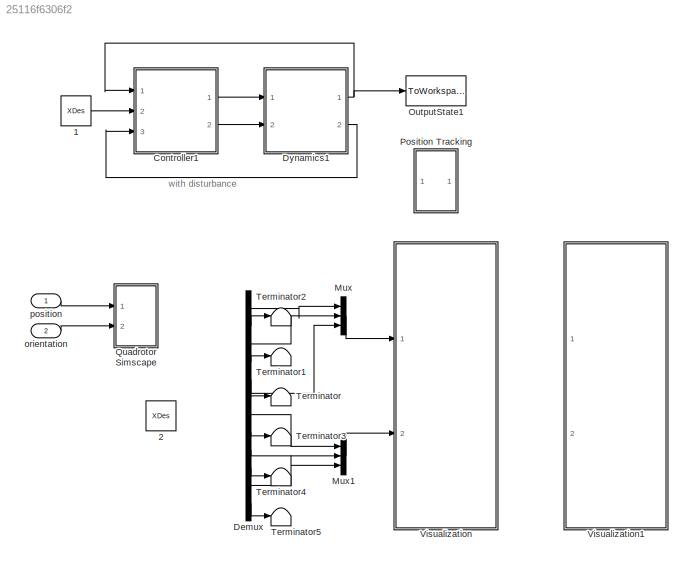
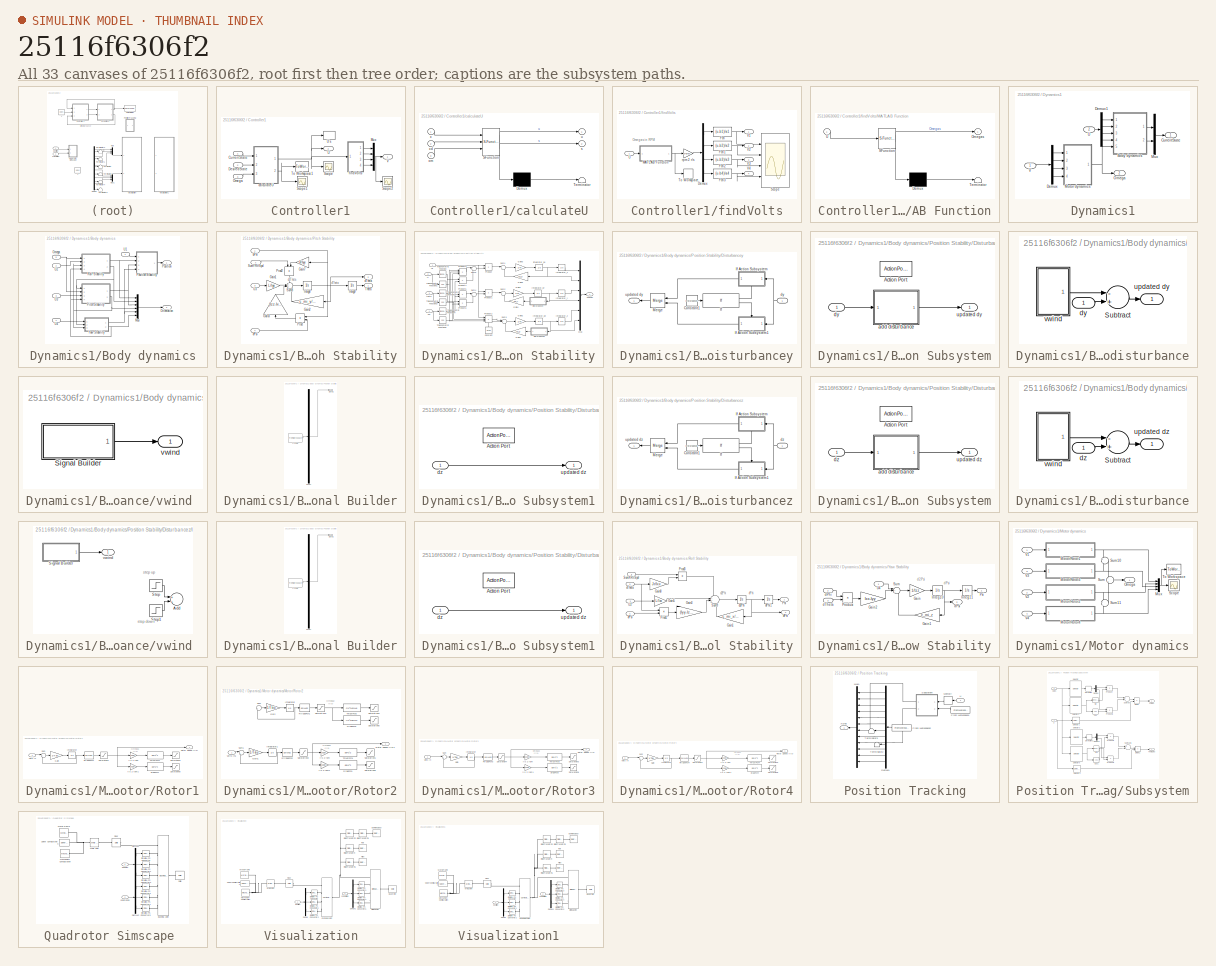
[diagram: thumbnail index - all 33 canvases of the model, root first then tree order]
MODEL slx_25116f6306f2
KIND model
CONFIG AbsTol = auto
CONFIG EnableMultiTasking = off
CONFIG FixedStep = auto
CONFIG MaxStep = auto
CONFIG MinStep = auto
CONFIG RelTol = 1e-3
CONFIG SampleTimeConstraint = Unconstrained
CONFIG Solver = VariableStepAuto
CONFIG SolverName = VariableStepAuto
CONFIG StartTime = 0.0
CONFIG StopTime = 10.0
BLOCK [Constant]  1
  Commented = on
  Value = XDes
BLOCK [Constant]  2
  Commented = on
  Value = XDes
BLOCK [SubSystem] Controller1
  Commented = on
  Ports = [3, 2]
  RequestExecContextInheritance = off
BLOCK [Inport] Controller1/CurrentState 
  IconDisplay = Port number
BLOCK [Inport] Controller1/DesiredState
  IconDisplay = Port number
  Port = 2
BLOCK [Mux] Controller1/Mux
  DisplayOption = bar
  Ports = [4, 1]
BLOCK [Inport] Controller1/Omega
  IconDisplay = Port number
  Port = 3
BLOCK [Scope] Controller1/Scope
  Floating = off
  NumInputPorts = 1
  Ports = [1]
  ScopeSpecificationString = Simulink.scopes.TimeScopeBlockCfg('CurrentConfiguration', extmgr.ConfigurationSet(extmgr.Configuration('Core','General UI',true),extmgr.Configuration('Core','Source UI',true),extmgr.Configuration('Sources','WiredSimulink',true,'DataLoggingVariableName','ScopeData3'),extmgr.Configuration('Visuals','Time Domain',true,'SerializedDisplays',{struct('MinYLimReal','-15484481.76741','MaxYLimReal','9693001...<+1586ch>
BLOCK [Scope] Controller1/Scope1
  Floating = off
  NumInputPorts = 1
  Ports = [1]
  ScopeSpecificationString = Simulink.scopes.TimeScopeBlockCfg('CurrentConfiguration', extmgr.ConfigurationSet(extmgr.Configuration('Core','General UI',true),extmgr.Configuration('Core','Source UI',true),extmgr.Configuration('Sources','WiredSimulink',true,'DataLoggingVariableName','ScopeData4'),extmgr.Configuration('Visuals','Time Domain',true,'SerializedDisplays',{struct('MinYLimReal','-71.58233','MaxYLimReal','144.23998','Y...<+1428ch>
BLOCK [Scope] Controller1/Scope2
  Floating = off
  NumInputPorts = 1
  Ports = [1]
  ScopeSpecificationString = Simulink.scopes.TimeScopeBlockCfg('CurrentConfiguration', extmgr.ConfigurationSet(extmgr.Configuration('Core','General UI',true),extmgr.Configuration('Core','Source UI',true),extmgr.Configuration('Sources','WiredSimulink',true,'DataLoggingVariableName','ScopeData1'),extmgr.Configuration('Visuals','Time Domain',true,'SerializedDisplays',{struct('MinYLimReal','-444.9546','MaxYLimReal','4077.1509','Y...<+1424ch>
BLOCK [ToWorkspace] Controller1/To Workspace1
  FixptAsFi = on
  MaxDataPoints = inf
  Ports = [1]
  SampleTime = -1
  Save2DSignal = 3-D array (concatenate along third dimension)
  SaveFormat = Timeseries
  VariableName = sliding
BLOCK [Outport] Controller1/U
  IconDisplay = Port number
  Port = 2
BLOCK [ToWorkspace] Controller1/U's
  FixptAsFi = on
  MaxDataPoints = inf
  Ports = [1]
  SampleTime = -1
  Save2DSignal = 3-D array (concatenate along third dimension)
  SaveFormat = Timeseries
  VariableName = U_s
BLOCK [Outport] Controller1/V
  IconDisplay = Port number
BLOCK [SubSystem] Controller1/calculateU
  ErrorFcn = Stateflow.Translate.translate
  PermitHierarchicalResolution = ExplicitOnly
  Ports = [3, 2]
  RequestExecContextInheritance = off
  SFBlockType = MATLAB Function
  TreatAsAtomicUnit = on
BLOCK [Demux] Controller1/calculateU/ Demux 
  Outputs = 1
  Ports = [1, 1]
BLOCK [S-Function] Controller1/calculateU/ SFunction 
  EnableBusSupport = on
  FunctionName = sf_sfun
  PortCounts = [3 3]
  Ports = [3, 3]
  SFcnIsStateOwnerBlock = off
  SFunctionDeploymentMode = off
  Tag = Stateflow S-Function extra_simulink_blocks 2
BLOCK [Terminator] Controller1/calculateU/ Terminator 
BLOCK [Inport] Controller1/calculateU/om
  IconDisplay = Port number
  Port = 3
BLOCK [Outport] Controller1/calculateU/s
  IconDisplay = Port number
  Port = 2
BLOCK [Outport] Controller1/calculateU/u
  IconDisplay = Port number
BLOCK [Inport] Controller1/calculateU/x
  IconDisplay = Port number
BLOCK [Inport] Controller1/calculateU/xd
  IconDisplay = Port number
  Port = 2
BLOCK [SubSystem] Controller1/findVolts
  Ports = [1, 4]
  RequestExecContextInheritance = off
BLOCK [Demux] Controller1/findVolts/Demux
  DisplayOption = bar
  Ports = [1, 4]
BLOCK [Fcn] Controller1/findVolts/Fcn
  Expr = (u-b1)/a1
BLOCK [Fcn] Controller1/findVolts/Fcn1
  Expr = (u-b2)/a2
BLOCK [Fcn] Controller1/findVolts/Fcn2
  Expr = (u-b3)/a3
BLOCK [Fcn] Controller1/findVolts/Fcn3
  Expr = (u-b4)/a4
BLOCK [SubSystem] Controller1/findVolts/MATLAB Function
  ErrorFcn = Stateflow.Translate.translate
  PermitHierarchicalResolution = ExplicitOnly
  Ports = [1, 1]
  RequestExecContextInheritance = off
  SFBlockType = MATLAB Function
  TreatAsAtomicUnit = on
BLOCK [Demux] Controller1/findVolts/MATLAB Function/ Demux 
  Outputs = 1
  Ports = [1, 1]
BLOCK [S-Function] Controller1/findVolts/MATLAB Function/ SFunction 
  EnableBusSupport = on
  FunctionName = sf_sfun
  PortCounts = [1 2]
  Ports = [1, 2]
  SFcnIsStateOwnerBlock = off
  SFunctionDeploymentMode = off
  Tag = Stateflow S-Function extra_simulink_blocks 3
BLOCK [Terminator] Controller1/findVolts/MATLAB Function/ Terminator 
BLOCK [Outport] Controller1/findVolts/MATLAB Function/Omegas
  IconDisplay = Port number
BLOCK [Inport] Controller1/findVolts/MATLAB Function/U
  IconDisplay = Port number
BLOCK [Scope] Controller1/findVolts/Scope
  Floating = off
  NumInputPorts = 4
  Ports = [4]
  ScopeSpecificationString = Simulink.scopes.TimeScopeBlockCfg('CurrentConfiguration', extmgr.ConfigurationSet(extmgr.Configuration('Core','General UI',true),extmgr.Configuration('Core','Source UI',true),extmgr.Configuration('Sources','WiredSimulink',true,'DataLoggingVariableName','ScopeData1'),extmgr.Configuration('Visuals','Time Domain',true,'SerializedDisplays',{struct('MinYLimReal','-428.17112','MaxYLimReal','3957.07763',...<+1401ch>
BLOCK [ToWorkspace] Controller1/findVolts/To Workspace
  FixptAsFi = on
  MaxDataPoints = inf
  Ports = [1]
  SampleTime = -1
  Save2DSignal = 3-D array (concatenate along third dimension)
  SaveFormat = Timeseries
  VariableName = om1
BLOCK [Inport] Controller1/findVolts/U
  IconDisplay = Port number
BLOCK [Outport] Controller1/findVolts/V1
  IconDisplay = Port number
BLOCK [Outport] Controller1/findVolts/V2
  IconDisplay = Port number
  Port = 2
BLOCK [Outport] Controller1/findVolts/V3
  IconDisplay = Port number
  Port = 3
BLOCK [Outport] Controller1/findVolts/V4
  IconDisplay = Port number
  Port = 4
BLOCK [Gain] Controller1/findVolts/rpm 2 r//s
  Gain = 2*pi/60
  OutDataTypeStr = Inherit: Inherit via internal rule
  ParamDataTypeStr = Inherit: Inherit via internal rule
  SaturateOnIntegerOverflow = off
BLOCK [Demux] Demux
  Commented = on
  DisplayOption = bar
  Outputs = 12
  Ports = [1, 12]
BLOCK [SubSystem] Dynamics1
  Commented = on
  Ports = [2, 2]
  RequestExecContextInheritance = off
BLOCK [SubSystem] Dynamics1/Body dynamics
  Ports = [5, 2]
  RequestExecContextInheritance = off
BLOCK [Mux] Dynamics1/Body dynamics/Mux
  DisplayOption = bar
  Inputs = 6
  Ports = [6, 1]
BLOCK [Inport] Dynamics1/Body dynamics/Omega
  IconDisplay = Port number
  Port = 5
BLOCK [Outport] Dynamics1/Body dynamics/Orientation
  IconDisplay = Port number
  Port = 2
BLOCK [SubSystem] Dynamics1/Body dynamics/Pitch Stability
  Ports = [4, 2]
  RequestExecContextInheritance = off
BLOCK [Gain] Dynamics1/Body dynamics/Pitch Stability/Gain1
  Gain = L/Iyy
  OutDataTypeStr = Inherit: Inherit via internal rule
  ParamDataTypeStr = Inherit: Inherit via internal rule
  SaturateOnIntegerOverflow = off
BLOCK [Gain] Dynamics1/Body dynamics/Pitch Stability/Gain2
  Gain = c_mi_y/Iyy
  OutDataTypeStr = Inherit: Inherit via internal rule
  ParamDataTypeStr = Inherit: Inherit via internal rule
  SaturateOnIntegerOverflow = off
BLOCK [Gain] Dynamics1/Body dynamics/Pitch Stability/Gain3
  Gain = (Izz-Ixx)/Iyy
  OutDataTypeStr = Inherit: Inherit via internal rule
  ParamDataTypeStr = Inherit: Inherit via internal rule
  SaturateOnIntegerOverflow = off
BLOCK [Gain] Dynamics1/Body dynamics/Pitch Stability/Gain7
  Gain = Jr/Iyy
  OutDataTypeStr = Inherit: Inherit via internal rule
  ParamDataTypeStr = Inherit: Inherit via internal rule
  SaturateOnIntegerOverflow = off
BLOCK [Integrator] Dynamics1/Body dynamics/Pitch Stability/Integ8
  InitialCondition = dtheta_0
  Ports = [1, 1]
BLOCK [Integrator] Dynamics1/Body dynamics/Pitch Stability/Integ9
  InitialCondition = theta_0
  LowerSaturationLimit = -pi/2
  Ports = [1, 1]
  UpperSaturationLimit = pi/2
BLOCK [Product] Dynamics1/Body dynamics/Pitch Stability/Prod
  InputSameDT = off
  OutDataTypeStr = Inherit: Inherit via internal rule
  Ports = [2, 1]
  SaturateOnIntegerOverflow = off
BLOCK [Product] Dynamics1/Body dynamics/Pitch Stability/Prod2
  InputSameDT = off
  OutDataTypeStr = Inherit: Inherit via internal rule
  Ports = [2, 1]
  SaturateOnIntegerOverflow = off
BLOCK [Sum] Dynamics1/Body dynamics/Pitch Stability/Sum8
  IconShape = round
  InputSameDT = off
  Inputs = +++-
  OutDataTypeStr = Inherit: Inherit via internal rule
  Ports = [4, 1]
  SaturateOnIntegerOverflow = off
BLOCK [Inport] Dynamics1/Body dynamics/Pitch Stability/SumYRtrSpd
  IconDisplay = Port number
  Port = 2
BLOCK [Outport] Dynamics1/Body dynamics/Pitch Stability/Theta
  IconDisplay = Port number
BLOCK [Inport] Dynamics1/Body dynamics/Pitch Stability/U3
  IconDisplay = Port number
  Port = 3
BLOCK [Inport] Dynamics1/Body dynamics/Pitch Stability/dPhi
  IconDisplay = Port number
BLOCK [Inport] Dynamics1/Body dynamics/Pitch Stability/dPsi
  IconDisplay = Port number
  Port = 4
BLOCK [Outport] Dynamics1/Body dynamics/Pitch Stability/dTheta
  IconDisplay = Port number
  Port = 2
BLOCK [Outport] Dynamics1/Body dynamics/Position
  IconDisplay = Port number
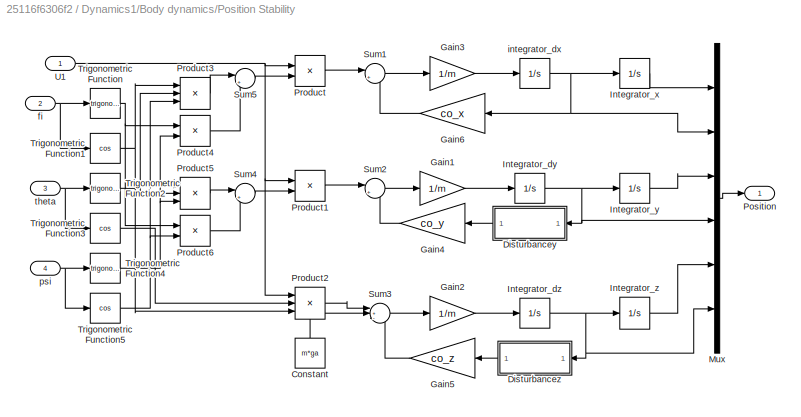
BLOCK [SubSystem] Dynamics1/Body dynamics/Position Stability
  Ports = [4, 1]
  RequestExecContextInheritance = off
BLOCK [Constant] Dynamics1/Body dynamics/Position Stability/Constant
  Value = m*ga
BLOCK [SubSystem] Dynamics1/Body dynamics/Position Stability/Disturbancey
  Ports = [1, 1]
  RequestExecContextInheritance = off
BLOCK [Constant] Dynamics1/Body dynamics/Position Stability/Disturbancey/Constant1
  Value = disturbancey
BLOCK [If] Dynamics1/Body dynamics/Position Stability/Disturbancey/If
  IfExpression = u1 == 1
  Ports = [1, 2]
BLOCK [SubSystem] Dynamics1/Body dynamics/Position Stability/Disturbancey/If Action Subsystem
  Ports = [1, 1, 0, 0, 0, 0, 0, 1]
  RequestExecContextInheritance = off
  TreatAsAtomicUnit = on
BLOCK [ActionPort] Dynamics1/Body dynamics/Position Stability/Disturbancey/If Action Subsystem/Action Port
BLOCK [SubSystem] Dynamics1/Body dynamics/Position Stability/Disturbancey/If Action Subsystem/add disturbance
  Ports = [1, 1]
  RequestExecContextInheritance = off
BLOCK [Sum] Dynamics1/Body dynamics/Position Stability/Disturbancey/If Action Subsystem/add disturbance/Subtract
  InputSameDT = off
  Inputs = -+
  OutDataTypeStr = Inherit: Inherit via internal rule
  Ports = [2, 1]
  SaturateOnIntegerOverflow = off
BLOCK [Inport] Dynamics1/Body dynamics/Position Stability/Disturbancey/If Action Subsystem/add disturbance/dy
  IconDisplay = Port number
BLOCK [Outport] Dynamics1/Body dynamics/Position Stability/Disturbancey/If Action Subsystem/add disturbance/updated dy
  IconDisplay = Port number
BLOCK [SubSystem] Dynamics1/Body dynamics/Position Stability/Disturbancey/If Action Subsystem/add disturbance/vwind 
  Ports = [0, 1]
  RequestExecContextInheritance = off
BLOCK [SubSystem] Dynamics1/Body dynamics/Position Stability/Disturbancey/If Action Subsystem/add disturbance/vwind /Signal Builder
  ClipboardFcn = sigbuilder_block('clipboard');
  CloseFcn = sigbuilder_block('close');
  ContinueFcn = sigbuilder_block('continue');
  CopyFcn = sigbuilder_block('copy');
  DeleteFcn = sigbuilder_block('delete');
  LoadFcn = sigbuilder_block('load');
  MaskHideContents = on
  ModelCloseFcn = sigbuilder_block('modelClose');
  NameChangeFcn = sigbuilder_block('namechange');
  OpenFcn = sigbuilder_block('open',[394.2 102 550.8 400.2 ]);
  PauseFcn = sigbuilder_block('pause');
  Ports = [0, 1]
  PreSaveFcn = sigbuilder_block('preSave');
  RequestExecContextInheritance = off
  StartFcn = sigbuilder_block('start');
  StopFcn = sigbuilder_block('stop');
  Tag = STV Subsys
BLOCK [Demux] Dynamics1/Body dynamics/Position Stability/Disturbancey/If Action Subsystem/add disturbance/vwind /Signal Builder/Demux
  Outputs = 1
  Ports = [1, 1]
  Tag = STV Demux
BLOCK [FromWorkspace] Dynamics1/Body dynamics/Position Stability/Disturbancey/If Action Subsystem/add disturbance/vwind /Signal Builder/FromWs
  SampleTime = 0
  Tag = STV FromWs
  VariableName = tuvar
  ZeroCross = on
BLOCK [Outport] Dynamics1/Body dynamics/Position Stability/Disturbancey/If Action Subsystem/add disturbance/vwind /Signal Builder/Signal 1
  IconDisplay = Port number
  Tag = STV Outport
BLOCK [Outport] Dynamics1/Body dynamics/Position Stability/Disturbancey/If Action Subsystem/add disturbance/vwind /vwind
  IconDisplay = Port number
BLOCK [Inport] Dynamics1/Body dynamics/Position Stability/Disturbancey/If Action Subsystem/dy
  IconDisplay = Port number
BLOCK [Outport] Dynamics1/Body dynamics/Position Stability/Disturbancey/If Action Subsystem/updated dy
  IconDisplay = Port number
BLOCK [SubSystem] Dynamics1/Body dynamics/Position Stability/Disturbancey/If Action Subsystem1
  Ports = [1, 1, 0, 0, 0, 0, 0, 1]
  RequestExecContextInheritance = off
  TreatAsAtomicUnit = on
BLOCK [ActionPort] Dynamics1/Body dynamics/Position Stability/Disturbancey/If Action Subsystem1/Action Port
BLOCK [Inport] Dynamics1/Body dynamics/Position Stability/Disturbancey/If Action Subsystem1/dz
  IconDisplay = Port number
BLOCK [Outport] Dynamics1/Body dynamics/Position Stability/Disturbancey/If Action Subsystem1/updated dz
  IconDisplay = Port number
BLOCK [Merge] Dynamics1/Body dynamics/Position Stability/Disturbancey/Merge
  Ports = [2, 1]
BLOCK [Inport] Dynamics1/Body dynamics/Position Stability/Disturbancey/dy
  IconDisplay = Port number
BLOCK [Outport] Dynamics1/Body dynamics/Position Stability/Disturbancey/updated dy
  IconDisplay = Port number
BLOCK [SubSystem] Dynamics1/Body dynamics/Position Stability/Disturbancez
  Ports = [1, 1]
  RequestExecContextInheritance = off
BLOCK [Constant] Dynamics1/Body dynamics/Position Stability/Disturbancez/Constant1
  Value = disturbancez
BLOCK [If] Dynamics1/Body dynamics/Position Stability/Disturbancez/If
  IfExpression = u1 == 1
  Ports = [1, 2]
BLOCK [SubSystem] Dynamics1/Body dynamics/Position Stability/Disturbancez/If Action Subsystem
  Ports = [1, 1, 0, 0, 0, 0, 0, 1]
  RequestExecContextInheritance = off
  TreatAsAtomicUnit = on
BLOCK [ActionPort] Dynamics1/Body dynamics/Position Stability/Disturbancez/If Action Subsystem/Action Port
BLOCK [SubSystem] Dynamics1/Body dynamics/Position Stability/Disturbancez/If Action Subsystem/add disturbance
  Ports = [1, 1]
  RequestExecContextInheritance = off
BLOCK [Sum] Dynamics1/Body dynamics/Position Stability/Disturbancez/If Action Subsystem/add disturbance/Subtract
  InputSameDT = off
  Inputs = -+
  OutDataTypeStr = Inherit: Inherit via internal rule
  Ports = [2, 1]
  SaturateOnIntegerOverflow = off
BLOCK [Inport] Dynamics1/Body dynamics/Position Stability/Disturbancez/If Action Subsystem/add disturbance/dz
  IconDisplay = Port number
BLOCK [Outport] Dynamics1/Body dynamics/Position Stability/Disturbancez/If Action Subsystem/add disturbance/updated dz
  IconDisplay = Port number
BLOCK [SubSystem] Dynamics1/Body dynamics/Position Stability/Disturbancez/If Action Subsystem/add disturbance/vwind 
  Ports = [0, 1]
  RequestExecContextInheritance = off
BLOCK [Sum] Dynamics1/Body dynamics/Position Stability/Disturbancez/If Action Subsystem/add disturbance/vwind /Add
  Commented = on
  InputSameDT = off
  OutDataTypeStr = Inherit: Inherit via internal rule
  Ports = [2, 1]
  SaturateOnIntegerOverflow = off
BLOCK [SubSystem] Dynamics1/Body dynamics/Position Stability/Disturbancez/If Action Subsystem/add disturbance/vwind /Signal Builder
  ClipboardFcn = sigbuilder_block('clipboard');
  CloseFcn = sigbuilder_block('close');
  ContinueFcn = sigbuilder_block('continue');
  CopyFcn = sigbuilder_block('copy');
  DeleteFcn = sigbuilder_block('delete');
  LoadFcn = sigbuilder_block('load');
  MaskHideContents = on
  ModelCloseFcn = sigbuilder_block('modelClose');
  NameChangeFcn = sigbuilder_block('namechange');
  OpenFcn = sigbuilder_block('open',[437.6 199.2 550.4 400 ]);
  PauseFcn = sigbuilder_block('pause');
  Ports = [0, 1]
  PreSaveFcn = sigbuilder_block('preSave');
  RequestExecContextInheritance = off
  StartFcn = sigbuilder_block('start');
  StopFcn = sigbuilder_block('stop');
  Tag = STV Subsys
BLOCK [Demux] Dynamics1/Body dynamics/Position Stability/Disturbancez/If Action Subsystem/add disturbance/vwind /Signal Builder/Demux
  Outputs = 1
  Ports = [1, 1]
  Tag = STV Demux
BLOCK [FromWorkspace] Dynamics1/Body dynamics/Position Stability/Disturbancez/If Action Subsystem/add disturbance/vwind /Signal Builder/FromWs
  SampleTime = 0
  Tag = STV FromWs
  VariableName = tuvar
  ZeroCross = on
BLOCK [Outport] Dynamics1/Body dynamics/Position Stability/Disturbancez/If Action Subsystem/add disturbance/vwind /Signal Builder/Signal 1
  IconDisplay = Port number
  Tag = STV Outport
BLOCK [Step] Dynamics1/Body dynamics/Position Stability/Disturbancez/If Action Subsystem/add disturbance/vwind /Step
  After = maxdz
  Commented = on
  SampleTime = 0
  Time = 2
BLOCK [Step] Dynamics1/Body dynamics/Position Stability/Disturbancez/If Action Subsystem/add disturbance/vwind /Step1
  After = -maxdz
  Commented = on
  SampleTime = 0
  Time = 2.25
BLOCK [Outport] Dynamics1/Body dynamics/Position Stability/Disturbancez/If Action Subsystem/add disturbance/vwind /vwind
  IconDisplay = Port number
BLOCK [Inport] Dynamics1/Body dynamics/Position Stability/Disturbancez/If Action Subsystem/dz
  IconDisplay = Port number
BLOCK [Outport] Dynamics1/Body dynamics/Position Stability/Disturbancez/If Action Subsystem/updated dz
  IconDisplay = Port number
BLOCK [SubSystem] Dynamics1/Body dynamics/Position Stability/Disturbancez/If Action Subsystem1
  Ports = [1, 1, 0, 0, 0, 0, 0, 1]
  RequestExecContextInheritance = off
  TreatAsAtomicUnit = on
BLOCK [ActionPort] Dynamics1/Body dynamics/Position Stability/Disturbancez/If Action Subsystem1/Action Port
BLOCK [Inport] Dynamics1/Body dynamics/Position Stability/Disturbancez/If Action Subsystem1/dz
  IconDisplay = Port number
BLOCK [Outport] Dynamics1/Body dynamics/Position Stability/Disturbancez/If Action Subsystem1/updated dz
  IconDisplay = Port number
BLOCK [Merge] Dynamics1/Body dynamics/Position Stability/Disturbancez/Merge
  Ports = [2, 1]
BLOCK [Inport] Dynamics1/Body dynamics/Position Stability/Disturbancez/dz
  IconDisplay = Port number
BLOCK [Outport] Dynamics1/Body dynamics/Position Stability/Disturbancez/updated dz
  IconDisplay = Port number
BLOCK [Gain] Dynamics1/Body dynamics/Position Stability/Gain1
  Gain = 1/m
  OutDataTypeStr = Inherit: Inherit via internal rule
  ParamDataTypeStr = Inherit: Inherit via internal rule
  SaturateOnIntegerOverflow = off
BLOCK [Gain] Dynamics1/Body dynamics/Position Stability/Gain2
  Gain = 1/m
  OutDataTypeStr = Inherit: Inherit via internal rule
  ParamDataTypeStr = Inherit: Inherit via internal rule
  SaturateOnIntegerOverflow = off
BLOCK [Gain] Dynamics1/Body dynamics/Position Stability/Gain3
  Gain = 1/m
  OutDataTypeStr = Inherit: Inherit via internal rule
  ParamDataTypeStr = Inherit: Inherit via internal rule
  SaturateOnIntegerOverflow = off
BLOCK [Gain] Dynamics1/Body dynamics/Position Stability/Gain4
  Gain = co_y
  OutDataTypeStr = Inherit: Inherit via internal rule
  ParamDataTypeStr = Inherit: Inherit via internal rule
  SaturateOnIntegerOverflow = off
BLOCK [Gain] Dynamics1/Body dynamics/Position Stability/Gain5
  Gain = co_z
  OutDataTypeStr = Inherit: Inherit via internal rule
  ParamDataTypeStr = Inherit: Inherit via internal rule
  SaturateOnIntegerOverflow = off
BLOCK [Gain] Dynamics1/Body dynamics/Position Stability/Gain6
  Gain = co_x
  OutDataTypeStr = Inherit: Inherit via internal rule
  ParamDataTypeStr = Inherit: Inherit via internal rule
  SaturateOnIntegerOverflow = off
BLOCK [Integrator] Dynamics1/Body dynamics/Position Stability/Integrator_dy
  InitialCondition = dy_0
  LimitOutput = on
  LowerSaturationLimit = -1000
  Ports = [1, 1]
  UpperSaturationLimit = 1000
BLOCK [Integrator] Dynamics1/Body dynamics/Position Stability/Integrator_dz
  InitialCondition = dz_0
  LimitOutput = on
  LowerSaturationLimit = -1000
  Ports = [1, 1]
  UpperSaturationLimit = 1000
BLOCK [Integrator] Dynamics1/Body dynamics/Position Stability/Integrator_x
  InitialCondition = x_0
  Ports = [1, 1]
BLOCK [Integrator] Dynamics1/Body dynamics/Position Stability/Integrator_y
  InitialCondition = y_0
  Ports = [1, 1]
BLOCK [Integrator] Dynamics1/Body dynamics/Position Stability/Integrator_z
  InitialCondition = z_0
  Ports = [1, 1]
BLOCK [Mux] Dynamics1/Body dynamics/Position Stability/Mux
  DisplayOption = bar
  Inputs = 6
  Ports = [6, 1]
BLOCK [Outport] Dynamics1/Body dynamics/Position Stability/Position
  IconDisplay = Port number
BLOCK [Product] Dynamics1/Body dynamics/Position Stability/Product
  InputSameDT = off
  OutDataTypeStr = Inherit: Inherit via internal rule
  Ports = [2, 1]
  SaturateOnIntegerOverflow = off
BLOCK [Product] Dynamics1/Body dynamics/Position Stability/Product1
  InputSameDT = off
  OutDataTypeStr = Inherit: Inherit via internal rule
  Ports = [2, 1]
  SaturateOnIntegerOverflow = off
BLOCK [Product] Dynamics1/Body dynamics/Position Stability/Product2
  InputSameDT = off
  Inputs = 3
  OutDataTypeStr = Inherit: Inherit via internal rule
  Ports = [3, 1]
  SaturateOnIntegerOverflow = off
BLOCK [Product] Dynamics1/Body dynamics/Position Stability/Product3
  InputSameDT = off
  Inputs = 3
  OutDataTypeStr = Inherit: Inherit via internal rule
  Ports = [3, 1]
  SaturateOnIntegerOverflow = off
BLOCK [Product] Dynamics1/Body dynamics/Position Stability/Product4
  InputSameDT = off
  OutDataTypeStr = Inherit: Inherit via internal rule
  Ports = [2, 1]
  SaturateOnIntegerOverflow = off
BLOCK [Product] Dynamics1/Body dynamics/Position Stability/Product5
  InputSameDT = off
  Inputs = 3
  OutDataTypeStr = Inherit: Inherit via internal rule
  Ports = [3, 1]
  SaturateOnIntegerOverflow = off
BLOCK [Product] Dynamics1/Body dynamics/Position Stability/Product6
  InputSameDT = off
  OutDataTypeStr = Inherit: Inherit via internal rule
  Ports = [2, 1]
  SaturateOnIntegerOverflow = off
BLOCK [Sum] Dynamics1/Body dynamics/Position Stability/Sum1
  IconShape = round
  InputSameDT = off
  Inputs = |+-
  OutDataTypeStr = Inherit: Inherit via internal rule
  Ports = [2, 1]
  SaturateOnIntegerOverflow = off
BLOCK [Sum] Dynamics1/Body dynamics/Position Stability/Sum2
  IconShape = round
  InputSameDT = off
  Inputs = |+-
  OutDataTypeStr = Inherit: Inherit via internal rule
  Ports = [2, 1]
  SaturateOnIntegerOverflow = off
BLOCK [Sum] Dynamics1/Body dynamics/Position Stability/Sum3
  IconShape = round
  InputSameDT = off
  Inputs = |+--
  OutDataTypeStr = Inherit: Inherit via internal rule
  Ports = [3, 1]
  SaturateOnIntegerOverflow = off
BLOCK [Sum] Dynamics1/Body dynamics/Position Stability/Sum4
  IconShape = round
  InputSameDT = off
  Inputs = |+-
  OutDataTypeStr = Inherit: Inherit via internal rule
  Ports = [2, 1]
  SaturateOnIntegerOverflow = off
BLOCK [Sum] Dynamics1/Body dynamics/Position Stability/Sum5
  IconShape = round
  InputSameDT = off
  Inputs = |++
  OutDataTypeStr = Inherit: Inherit via internal rule
  Ports = [2, 1]
  SaturateOnIntegerOverflow = off
BLOCK [Trigonometry] Dynamics1/Body dynamics/Position Stability/Trigonometric Function
  Ports = [1, 1]
BLOCK [Trigonometry] Dynamics1/Body dynamics/Position Stability/Trigonometric Function1
  Operator = cos
  Ports = [1, 1]
BLOCK [Trigonometry] Dynamics1/Body dynamics/Position Stability/Trigonometric Function2
  Ports = [1, 1]
BLOCK [Trigonometry] Dynamics1/Body dynamics/Position Stability/Trigonometric Function3
  Operator = cos
  Ports = [1, 1]
BLOCK [Trigonometry] Dynamics1/Body dynamics/Position Stability/Trigonometric Function4
  Ports = [1, 1]
BLOCK [Trigonometry] Dynamics1/Body dynamics/Position Stability/Trigonometric Function5
  Operator = cos
  Ports = [1, 1]
BLOCK [Inport] Dynamics1/Body dynamics/Position Stability/U1
  IconDisplay = Port number
BLOCK [Inport] Dynamics1/Body dynamics/Position Stability/fi
  IconDisplay = Port number
  Port = 2
BLOCK [Integrator] Dynamics1/Body dynamics/Position Stability/integrator_dx
  InitialCondition = dx_0
  LimitOutput = on
  LowerSaturationLimit = -1000
  Ports = [1, 1]
  UpperSaturationLimit = 1000
BLOCK [Inport] Dynamics1/Body dynamics/Position Stability/psi
  IconDisplay = Port number
  Port = 4
BLOCK [Inport] Dynamics1/Body dynamics/Position Stability/theta
  IconDisplay = Port number
  Port = 3
BLOCK [SubSystem] Dynamics1/Body dynamics/Roll Stability
  Ports = [4, 2]
  RequestExecContextInheritance = off
BLOCK [Gain] Dynamics1/Body dynamics/Roll Stability/Gain1
  Gain = c_mi_x/Ixx
  OutDataTypeStr = Inherit: Inherit via internal rule
  ParamDataTypeStr = Inherit: Inherit via internal rule
  SaturateOnIntegerOverflow = off
BLOCK [Gain] Dynamics1/Body dynamics/Roll Stability/Gain3
  Gain = (Iyy-Izz)/Ixx
  OutDataTypeStr = Inherit: Inherit via internal rule
  ParamDataTypeStr = Inherit: Inherit via internal rule
  SaturateOnIntegerOverflow = off
BLOCK [Gain] Dynamics1/Body dynamics/Roll Stability/Gain5
  Gain = L/Ixx
  OutDataTypeStr = Inherit: Inherit via internal rule
  ParamDataTypeStr = Inherit: Inherit via internal rule
  SaturateOnIntegerOverflow = off
BLOCK [Gain] Dynamics1/Body dynamics/Roll Stability/Gain8
  Gain = Jr/Ixx
  OutDataTypeStr = Inherit: Inherit via internal rule
  ParamDataTypeStr = Inherit: Inherit via internal rule
  SaturateOnIntegerOverflow = off
BLOCK [Outport] Dynamics1/Body dynamics/Roll Stability/Phi
  IconDisplay = Port number
BLOCK [Product] Dynamics1/Body dynamics/Roll Stability/Prod1
  InputSameDT = off
  OutDataTypeStr = Inherit: Inherit via internal rule
  Ports = [2, 1]
  SaturateOnIntegerOverflow = off
BLOCK [Product] Dynamics1/Body dynamics/Roll Stability/Prod3
  InputSameDT = off
  OutDataTypeStr = Inherit: Inherit via internal rule
  Ports = [2, 1]
  SaturateOnIntegerOverflow = off
BLOCK [Sum] Dynamics1/Body dynamics/Roll Stability/Sum9
  IconShape = round
  InputSameDT = off
  Inputs = -++-
  OutDataTypeStr = Inherit: Inherit via internal rule
  Ports = [4, 1]
  SaturateOnIntegerOverflow = off
BLOCK [Inport] Dynamics1/Body dynamics/Roll Stability/SumXRtrSpd
  IconDisplay = Port number
BLOCK [Inport] Dynamics1/Body dynamics/Roll Stability/U2
  IconDisplay = Port number
  Port = 2
BLOCK [Integrator] Dynamics1/Body dynamics/Roll Stability/d2Phi
  InitialCondition = dfi_0
  Ports = [1, 1]
BLOCK [Outport] Dynamics1/Body dynamics/Roll Stability/dPhi
  IconDisplay = Port number
  Port = 2
BLOCK [Integrator] Dynamics1/Body dynamics/Roll Stability/dPhi1
  InitialCondition = fi_0
  LowerSaturationLimit = -pi/2
  Ports = [1, 1]
  UpperSaturationLimit = pi/2
BLOCK [Inport] Dynamics1/Body dynamics/Roll Stability/dPsi
  IconDisplay = Port number
  Port = 4
BLOCK [Inport] Dynamics1/Body dynamics/Roll Stability/dTheta
  IconDisplay = Port number
  Port = 3
BLOCK [Inport] Dynamics1/Body dynamics/U1
  IconDisplay = Port number
BLOCK [Inport] Dynamics1/Body dynamics/U2
  IconDisplay = Port number
  Port = 2
BLOCK [Inport] Dynamics1/Body dynamics/U3
  IconDisplay = Port number
  Port = 3
BLOCK [Inport] Dynamics1/Body dynamics/U4
  IconDisplay = Port number
  Port = 4
BLOCK [SubSystem] Dynamics1/Body dynamics/Yaw Stability
  Ports = [3, 2]
  RequestExecContextInheritance = off
BLOCK [Gain] Dynamics1/Body dynamics/Yaw Stability/Gain
  Gain = 1/Izz
  OutDataTypeStr = Inherit: Inherit via internal rule
  ParamDataTypeStr = Inherit: Inherit via internal rule
  SaturateOnIntegerOverflow = off
BLOCK [Gain] Dynamics1/Body dynamics/Yaw Stability/Gain1
  Gain = c_mi_z
  OutDataTypeStr = Inherit: Inherit via internal rule
  ParamDataTypeStr = Inherit: Inherit via internal rule
  SaturateOnIntegerOverflow = off
BLOCK [Gain] Dynamics1/Body dynamics/Yaw Stability/Gain2
  Gain = Ixx-Iyy
  OutDataTypeStr = Inherit: Inherit via internal rule
  ParamDataTypeStr = Inherit: Inherit via internal rule
  SaturateOnIntegerOverflow = off
BLOCK [Integrator] Dynamics1/Body dynamics/Yaw Stability/Integ10
  InitialCondition = dpsi_0
  Ports = [1, 1]
BLOCK [Integrator] Dynamics1/Body dynamics/Yaw Stability/Integ11
  InitialCondition = psi_0
  Ports = [1, 1]
BLOCK [Product] Dynamics1/Body dynamics/Yaw Stability/Product
  InputSameDT = off
  OutDataTypeStr = Inherit: Inherit via internal rule
  Ports = [2, 1]
  SaturateOnIntegerOverflow = off
BLOCK [Outport] Dynamics1/Body dynamics/Yaw Stability/Psi
  IconDisplay = Port number
BLOCK [Sum] Dynamics1/Body dynamics/Yaw Stability/Sum
  IconShape = round
  InputSameDT = off
  Inputs = |++-
  OutDataTypeStr = Inherit: Inherit via internal rule
  Ports = [3, 1]
  SaturateOnIntegerOverflow = off
BLOCK [Inport] Dynamics1/Body dynamics/Yaw Stability/U4
  IconDisplay = Port number
BLOCK [Inport] Dynamics1/Body dynamics/Yaw Stability/dPhi
  IconDisplay = Port number
  Port = 2
BLOCK [Outport] Dynamics1/Body dynamics/Yaw Stability/dPsi
  IconDisplay = Port number
  Port = 2
BLOCK [Inport] Dynamics1/Body dynamics/Yaw Stability/dTheta
  IconDisplay = Port number
  Port = 3
BLOCK [Outport] Dynamics1/CurrentState 
  IconDisplay = Port number
BLOCK [Demux] Dynamics1/Demux
  DisplayOption = bar
  Ports = [1, 4]
BLOCK [Demux] Dynamics1/Demux1
  DisplayOption = bar
  Ports = [1, 4]
BLOCK [SubSystem] Dynamics1/Motor dynamics
  Ports = [4, 1]
  RequestExecContextInheritance = off
BLOCK [SubSystem] Dynamics1/Motor dynamics/Motor//Rotor1
  Ports = [1, 1]
  RequestExecContextInheritance = off
BLOCK [Fcn] Dynamics1/Motor dynamics/Motor//Rotor1/DragFcn1
  Commented = on
  Expr = dd*u^2
BLOCK [Gain] Dynamics1/Motor dynamics/Motor//Rotor1/Gain
  Gain = 1/Tau
  OutDataTypeStr = Inherit: Inherit via internal rule
  ParamDataTypeStr = Inherit: Inherit via internal rule
  SaturateOnIntegerOverflow = off
BLOCK [Integrator] Dynamics1/Motor dynamics/Motor//Rotor1/Integrator
  InitialCondition = d_omega_R10
  Ports = [1, 1]
BLOCK [Outport] Dynamics1/Motor dynamics/Motor//Rotor1/Rotor Speed (r//s)
  IconDisplay = Port number
BLOCK [Fcn] Dynamics1/Motor dynamics/Motor//Rotor1/RtrSpdFcn1
  Expr = a1*u+b1
BLOCK [Saturate] Dynamics1/Motor dynamics/Motor//Rotor1/Saturation3
  Commented = on
  InputPortMap = u0
  LowerLimit = -1000
  Ports = [1, 1]
  UpperLimit = 1000
BLOCK [Saturate] Dynamics1/Motor dynamics/Motor//Rotor1/Saturation4
  InputPortMap = u0
  LowerLimit = 0
  Ports = [1, 1]
  UpperLimit = 250
BLOCK [Saturate] Dynamics1/Motor dynamics/Motor//Rotor1/Saturation8
  Commented = on
  InputPortMap = u0
  LowerLimit = -1000
  Ports = [1, 1]
  UpperLimit = 1000
BLOCK [Sum] Dynamics1/Motor dynamics/Motor//Rotor1/Sum
  IconShape = round
  InputSameDT = off
  Inputs = |+-
  OutDataTypeStr = Inherit: Inherit via internal rule
  Ports = [2, 1]
  SaturateOnIntegerOverflow = off
BLOCK [Fcn] Dynamics1/Motor dynamics/Motor//Rotor1/ThrustFcn1
  Commented = on
  Expr = bb*u^2
BLOCK [Inport] Dynamics1/Motor dynamics/Motor//Rotor1/Volts In
  IconDisplay = Port number
BLOCK [Gain] Dynamics1/Motor dynamics/Motor//Rotor1/r//s 2 rpm
  Commented = on
  Gain = 60/2/pi
  OutDataTypeStr = Inherit: Inherit via internal rule
  ParamDataTypeStr = Inherit: Inherit via internal rule
  SaturateOnIntegerOverflow = off
BLOCK [Gain] Dynamics1/Motor dynamics/Motor//Rotor1/r//s 2 rpm1
  Commented = on
  Gain = 60/2/pi
  OutDataTypeStr = Inherit: Inherit via internal rule
  ParamDataTypeStr = Inherit: Inherit via internal rule
  SaturateOnIntegerOverflow = off
BLOCK [SubSystem] Dynamics1/Motor dynamics/Motor//Rotor2
  Ports = [1, 1]
  RequestExecContextInheritance = off
BLOCK [Fcn] Dynamics1/Motor dynamics/Motor//Rotor2/DragFcn1
  Commented = on
  Expr = dd*u^2
BLOCK [Fcn] Dynamics1/Motor dynamics/Motor//Rotor2/DragFcn2
  Commented = through
  Expr = f*u^2+g*u+h
BLOCK [Gain] Dynamics1/Motor dynamics/Motor//Rotor2/Gain
  Commented = through
  Gain = 1/Tau
  OutDataTypeStr = Inherit: Inherit via internal rule
  ParamDataTypeStr = Inherit: Inherit via internal rule
  SaturateOnIntegerOverflow = off
BLOCK [Gain] Dynamics1/Motor dynamics/Motor//Rotor2/Gain1
  Gain = 1/Tau
  OutDataTypeStr = Inherit: Inherit via internal rule
  ParamDataTypeStr = Inherit: Inherit via internal rule
  SaturateOnIntegerOverflow = off
BLOCK [Integrator] Dynamics1/Motor dynamics/Motor//Rotor2/Integrator
  Commented = through
  InitialCondition = d_omega_R20
  Ports = [1, 1]
BLOCK [Integrator] Dynamics1/Motor dynamics/Motor//Rotor2/Integrator1
  InitialCondition = d_omega_R20
  Ports = [1, 1]
BLOCK [Outport] Dynamics1/Motor dynamics/Motor//Rotor2/Rotor Speed (r//s)1
  IconDisplay = Port number
BLOCK [Fcn] Dynamics1/Motor dynamics/Motor//Rotor2/RtrSpdFcn1
  Commented = through
  Expr = a2*u+b2
BLOCK [Fcn] Dynamics1/Motor dynamics/Motor//Rotor2/RtrSpdFcn2
  Expr = a2*u+b2
BLOCK [Saturate] Dynamics1/Motor dynamics/Motor//Rotor2/Saturation1
  Commented = on
  InputPortMap = u0
  LowerLimit = -1000
  Ports = [1, 1]
  UpperLimit = 1000
BLOCK [Saturate] Dynamics1/Motor dynamics/Motor//Rotor2/Saturation2
  InputPortMap = u0
  LowerLimit = 0
  Ports = [1, 1]
  UpperLimit = 250
BLOCK [Saturate] Dynamics1/Motor dynamics/Motor//Rotor2/Saturation3
  Commented = through
  InputPortMap = u0
  LowerLimit = -1000
  Ports = [1, 1]
  UpperLimit = 1000
BLOCK [Saturate] Dynamics1/Motor dynamics/Motor//Rotor2/Saturation4
  Commented = through
  InputPortMap = u0
  LowerLimit = -1000
  Ports = [1, 1]
  UpperLimit = 1000
BLOCK [Saturate] Dynamics1/Motor dynamics/Motor//Rotor2/Saturation5
  Commented = on
  InputPortMap = u0
  LowerLimit = -1000
  Ports = [1, 1]
  UpperLimit = 1000
BLOCK [Saturate] Dynamics1/Motor dynamics/Motor//Rotor2/Saturation8
  Commented = through
  InputPortMap = u0
  LowerLimit = -1000
  Ports = [1, 1]
  UpperLimit = 1000
BLOCK [Sum] Dynamics1/Motor dynamics/Motor//Rotor2/Sum
  Commented = on
  IconShape = round
  InputSameDT = off
  Inputs = |+-
  OutDataTypeStr = Inherit: Inherit via internal rule
  Ports = [2, 1]
  SaturateOnIntegerOverflow = off
BLOCK [Sum] Dynamics1/Motor dynamics/Motor//Rotor2/Sum1
  IconShape = round
  InputSameDT = off
  Inputs = |+-
  OutDataTypeStr = Inherit: Inherit via internal rule
  Ports = [2, 1]
  SaturateOnIntegerOverflow = off
BLOCK [Fcn] Dynamics1/Motor dynamics/Motor//Rotor2/ThrustFcn1
  Commented = on
  Expr = bb*u^2
BLOCK [Fcn] Dynamics1/Motor dynamics/Motor//Rotor2/ThrustFcn2
  Commented = through
  Expr = c*u^2+d*u+e
BLOCK [Inport] Dynamics1/Motor dynamics/Motor//Rotor2/Volts In1
  IconDisplay = Port number
BLOCK [Gain] Dynamics1/Motor dynamics/Motor//Rotor2/r//s 2 rpm
  Commented = on
  Gain = 60/2/pi
  OutDataTypeStr = Inherit: Inherit via internal rule
  ParamDataTypeStr = Inherit: Inherit via internal rule
  SaturateOnIntegerOverflow = off
BLOCK [Gain] Dynamics1/Motor dynamics/Motor//Rotor2/r//s 2 rpm1
  Commented = on
  Gain = 60/2/pi
  OutDataTypeStr = Inherit: Inherit via internal rule
  ParamDataTypeStr = Inherit: Inherit via internal rule
  SaturateOnIntegerOverflow = off
BLOCK [SubSystem] Dynamics1/Motor dynamics/Motor//Rotor3
  Ports = [1, 1]
  RequestExecContextInheritance = off
BLOCK [Fcn] Dynamics1/Motor dynamics/Motor//Rotor3/DragFcn3
  Commented = on
  Expr = dd*u^2
BLOCK [Gain] Dynamics1/Motor dynamics/Motor//Rotor3/Gain
  Gain = 1/Tau
  OutDataTypeStr = Inherit: Inherit via internal rule
  ParamDataTypeStr = Inherit: Inherit via internal rule
  SaturateOnIntegerOverflow = off
BLOCK [Integrator] Dynamics1/Motor dynamics/Motor//Rotor3/Integrator
  InitialCondition = d_omega_R30
  Ports = [1, 1]
BLOCK [Outport] Dynamics1/Motor dynamics/Motor//Rotor3/Rotor Speed (r//s)
  IconDisplay = Port number
BLOCK [Fcn] Dynamics1/Motor dynamics/Motor//Rotor3/RtrSpdFcn3
  Expr = a3*u+b3
BLOCK [Saturate] Dynamics1/Motor dynamics/Motor//Rotor3/Saturation3
  Commented = on
  InputPortMap = u0
  LowerLimit = -1000
  Ports = [1, 1]
  UpperLimit = 1000
BLOCK [Saturate] Dynamics1/Motor dynamics/Motor//Rotor3/Saturation4
  InputPortMap = u0
  LowerLimit = 0
  Ports = [1, 1]
  UpperLimit = 250
BLOCK [Saturate] Dynamics1/Motor dynamics/Motor//Rotor3/Saturation8
  Commented = on
  InputPortMap = u0
  LowerLimit = -1000
  Ports = [1, 1]
  UpperLimit = 1000
BLOCK [Sum] Dynamics1/Motor dynamics/Motor//Rotor3/Sum
  IconShape = round
  InputSameDT = off
  Inputs = |+-
  OutDataTypeStr = Inherit: Inherit via internal rule
  Ports = [2, 1]
  SaturateOnIntegerOverflow = off
BLOCK [Fcn] Dynamics1/Motor dynamics/Motor//Rotor3/ThrustFcn3
  Commented = on
  Expr = bb*u^2
BLOCK [Inport] Dynamics1/Motor dynamics/Motor//Rotor3/Volts In
  IconDisplay = Port number
BLOCK [Gain] Dynamics1/Motor dynamics/Motor//Rotor3/r//s 2 rpm
  Commented = on
  Gain = 60/2/pi
  OutDataTypeStr = Inherit: Inherit via internal rule
  ParamDataTypeStr = Inherit: Inherit via internal rule
  SaturateOnIntegerOverflow = off
BLOCK [Gain] Dynamics1/Motor dynamics/Motor//Rotor3/r//s 2 rpm1
  Commented = on
  Gain = 60/2/pi
  OutDataTypeStr = Inherit: Inherit via internal rule
  ParamDataTypeStr = Inherit: Inherit via internal rule
  SaturateOnIntegerOverflow = off
BLOCK [SubSystem] Dynamics1/Motor dynamics/Motor//Rotor4
  Ports = [1, 1]
  RequestExecContextInheritance = off
BLOCK [Fcn] Dynamics1/Motor dynamics/Motor//Rotor4/DragFcn4
  Commented = on
  Expr = dd*u^2
BLOCK [Gain] Dynamics1/Motor dynamics/Motor//Rotor4/Gain
  Gain = 1/Tau
  OutDataTypeStr = Inherit: Inherit via internal rule
  ParamDataTypeStr = Inherit: Inherit via internal rule
  SaturateOnIntegerOverflow = off
BLOCK [Integrator] Dynamics1/Motor dynamics/Motor//Rotor4/Integrator
  InitialCondition = d_omega_R40
  Ports = [1, 1]
BLOCK [Outport] Dynamics1/Motor dynamics/Motor//Rotor4/Rotor Speed (r//s)
  IconDisplay = Port number
BLOCK [Fcn] Dynamics1/Motor dynamics/Motor//Rotor4/RtrSpdFcn4
  Expr = a4*u+b4
BLOCK [Saturate] Dynamics1/Motor dynamics/Motor//Rotor4/Saturation3
  Commented = on
  InputPortMap = u0
  LowerLimit = -1000
  Ports = [1, 1]
  UpperLimit = 1000
BLOCK [Saturate] Dynamics1/Motor dynamics/Motor//Rotor4/Saturation4
  InputPortMap = u0
  LowerLimit = 0
  Ports = [1, 1]
  UpperLimit = 250
BLOCK [Saturate] Dynamics1/Motor dynamics/Motor//Rotor4/Saturation8
  Commented = on
  InputPortMap = u0
  LowerLimit = -1000
  Ports = [1, 1]
  UpperLimit = 1000
BLOCK [Sum] Dynamics1/Motor dynamics/Motor//Rotor4/Sum
  IconShape = round
  InputSameDT = off
  Inputs = |+-
  OutDataTypeStr = Inherit: Inherit via internal rule
  Ports = [2, 1]
  SaturateOnIntegerOverflow = off
BLOCK [Fcn] Dynamics1/Motor dynamics/Motor//Rotor4/ThrustFcn4
  Commented = on
  Expr = bb*u^2
BLOCK [Inport] Dynamics1/Motor dynamics/Motor//Rotor4/Volts In
  IconDisplay = Port number
BLOCK [Gain] Dynamics1/Motor dynamics/Motor//Rotor4/r//s 2 rpm
  Commented = on
  Gain = 60/2/pi
  OutDataTypeStr = Inherit: Inherit via internal rule
  ParamDataTypeStr = Inherit: Inherit via internal rule
  SaturateOnIntegerOverflow = off
BLOCK [Gain] Dynamics1/Motor dynamics/Motor//Rotor4/r//s 2 rpm1
  Commented = on
  Gain = 60/2/pi
  OutDataTypeStr = Inherit: Inherit via internal rule
  ParamDataTypeStr = Inherit: Inherit via internal rule
  SaturateOnIntegerOverflow = off
BLOCK [Mux] Dynamics1/Motor dynamics/Mux
  DisplayOption = bar
  Ports = [4, 1]
BLOCK [Outport] Dynamics1/Motor dynamics/Omega
  IconDisplay = Port number
BLOCK [Scope] Dynamics1/Motor dynamics/Scope
  Floating = off
  NumInputPorts = 1
  Ports = [1]
  ScopeSpecificationString = Simulink.scopes.TimeScopeBlockCfg('CurrentConfiguration', extmgr.ConfigurationSet(extmgr.Configuration('Core','General UI',true),extmgr.Configuration('Core','Source UI',true),extmgr.Configuration('Sources','WiredSimulink',true,'DataLoggingVariableName','ScopeData1'),extmgr.Configuration('Visuals','Time Domain',true),extmgr.Configuration('Tools','Plot Navigation',true),extmgr.Configuration('Tools',...<+40ch>
BLOCK [Sum] Dynamics1/Motor dynamics/Sum
  IconShape = round
  InputSameDT = off
  Inputs = -+
  OutDataTypeStr = Inherit: Inherit via internal rule
  Ports = [2, 1]
  SaturateOnIntegerOverflow = off
BLOCK [Sum] Dynamics1/Motor dynamics/Sum10
  IconShape = round
  InputSameDT = off
  Inputs = +|+
  OutDataTypeStr = Inherit: Inherit via internal rule
  Ports = [2, 1]
  SaturateOnIntegerOverflow = off
BLOCK [Sum] Dynamics1/Motor dynamics/Sum11
  IconShape = round
  InputSameDT = off
  Inputs = +|+
  OutDataTypeStr = Inherit: Inherit via internal rule
  Ports = [2, 1]
  SaturateOnIntegerOverflow = off
BLOCK [ToWorkspace] Dynamics1/Motor dynamics/To Workspace
  FixptAsFi = on
  MaxDataPoints = inf
  Ports = [1]
  SampleTime = -1
  Save2DSignal = 3-D array (concatenate along third dimension)
  SaveFormat = Timeseries
  VariableName = Omega
BLOCK [Inport] Dynamics1/Motor dynamics/V1
  IconDisplay = Port number
BLOCK [Inport] Dynamics1/Motor dynamics/V2
  IconDisplay = Port number
  Port = 2
BLOCK [Inport] Dynamics1/Motor dynamics/V3
  IconDisplay = Port number
  Port = 3
BLOCK [Inport] Dynamics1/Motor dynamics/V4
  IconDisplay = Port number
  Port = 4
BLOCK [Mux] Dynamics1/Mux
  DisplayOption = bar
  Inputs = 2
  Ports = [2, 1]
BLOCK [Outport] Dynamics1/Omega
  IconDisplay = Port number
  Port = 2
BLOCK [Inport] Dynamics1/U
  IconDisplay = Port number
  Port = 2
BLOCK [Inport] Dynamics1/V
  IconDisplay = Port number
BLOCK [Mux] Mux
  Commented = on
  DisplayOption = bar
  Inputs = 3
  Ports = [3, 1]
BLOCK [Mux] Mux1
  Commented = on
  DisplayOption = bar
  Inputs = 3
  Ports = [3, 1]
BLOCK [ToWorkspace] OutputState1
  Commented = on
  FixptAsFi = on
  MaxDataPoints = inf
  Ports = [1]
  SampleTime = -1
  Save2DSignal = 3-D array (concatenate along third dimension)
  SaveFormat = Timeseries
  VariableName = state
BLOCK [SubSystem] Position Tracking
  Commented = on
  Ports = [1, 1]
  RequestExecContextInheritance = off
BLOCK [Demux] Position Tracking/Demux1
  DisplayOption = bar
  Outputs = 12
  Ports = [1, 12]
BLOCK [FromWorkspace] Position Tracking/From Workspace1
  SampleTime = 0
  VariableName = XDes
  ZeroCross = on
BLOCK [FromWorkspace] Position Tracking/From Workspace2
  SampleTime = 0
  VariableName = XDes
  ZeroCross = on
BLOCK [Memory] Position Tracking/Memory
  InitialCondition = 1
BLOCK [Mux] Position Tracking/Mux1
  DisplayOption = bar
  Inputs = 12
  Ports = [12, 1]
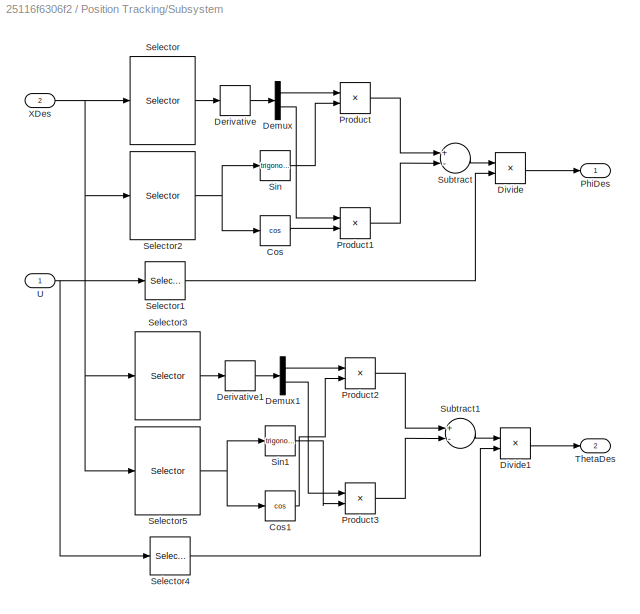
BLOCK [SubSystem] Position Tracking/Subsystem
  Ports = [2, 2]
  RequestExecContextInheritance = off
BLOCK [Trigonometry] Position Tracking/Subsystem/Cos
  Operator = cos
  Ports = [1, 1]
BLOCK [Trigonometry] Position Tracking/Subsystem/Cos1
  Operator = cos
  Ports = [1, 1]
BLOCK [Demux] Position Tracking/Subsystem/Demux
  DisplayOption = bar
  Outputs = 2
  Ports = [1, 2]
BLOCK [Demux] Position Tracking/Subsystem/Demux1
  DisplayOption = bar
  Outputs = 2
  Ports = [1, 2]
BLOCK [Derivative] Position Tracking/Subsystem/Derivative
BLOCK [Derivative] Position Tracking/Subsystem/Derivative1
BLOCK [Product] Position Tracking/Subsystem/Divide
  InputSameDT = off
  Inputs = */
  OutDataTypeStr = Inherit: Inherit via internal rule
  Ports = [2, 1]
  RndMeth = Floor
  SaturateOnIntegerOverflow = off
BLOCK [Product] Position Tracking/Subsystem/Divide1
  InputSameDT = off
  Inputs = */
  OutDataTypeStr = Inherit: Inherit via internal rule
  Ports = [2, 1]
  RndMeth = Floor
  SaturateOnIntegerOverflow = off
BLOCK [Outport] Position Tracking/Subsystem/PhiDes
  IconDisplay = Port number
BLOCK [Product] Position Tracking/Subsystem/Product
  InputSameDT = off
  OutDataTypeStr = Inherit: Inherit via internal rule
  Ports = [2, 1]
  RndMeth = Floor
  SaturateOnIntegerOverflow = off
BLOCK [Product] Position Tracking/Subsystem/Product1
  InputSameDT = off
  OutDataTypeStr = Inherit: Inherit via internal rule
  Ports = [2, 1]
  RndMeth = Floor
  SaturateOnIntegerOverflow = off
BLOCK [Product] Position Tracking/Subsystem/Product2
  InputSameDT = off
  OutDataTypeStr = Inherit: Inherit via internal rule
  Ports = [2, 1]
  RndMeth = Floor
  SaturateOnIntegerOverflow = off
BLOCK [Product] Position Tracking/Subsystem/Product3
  InputSameDT = off
  OutDataTypeStr = Inherit: Inherit via internal rule
  Ports = [2, 1]
  RndMeth = Floor
  SaturateOnIntegerOverflow = off
BLOCK [Selector] Position Tracking/Subsystem/Selector
  IndexOptions = Index vector (dialog)
  Indices = [2 4]
  InputPortWidth = 12
  OutputSizes = 1
  Ports = [1, 1]
BLOCK [Selector] Position Tracking/Subsystem/Selector1
  IndexOptions = Index vector (dialog)
  Indices = [1]
  InputPortWidth = 4
  OutputSizes = 1
  Ports = [1, 1]
BLOCK [Selector] Position Tracking/Subsystem/Selector2
  IndexOptions = Index vector (dialog)
  Indices = [11]
  InputPortWidth = 12
  OutputSizes = 1
  Ports = [1, 1]
BLOCK [Selector] Position Tracking/Subsystem/Selector3
  IndexOptions = Index vector (dialog)
  Indices = [2 4]
  InputPortWidth = 12
  OutputSizes = 1
  Ports = [1, 1]
BLOCK [Selector] Position Tracking/Subsystem/Selector4
  IndexOptions = Index vector (dialog)
  Indices = [1]
  InputPortWidth = 4
  OutputSizes = 1
  Ports = [1, 1]
BLOCK [Selector] Position Tracking/Subsystem/Selector5
  IndexOptions = Index vector (dialog)
  Indices = [11]
  InputPortWidth = 12
  OutputSizes = 1
  Ports = [1, 1]
BLOCK [Trigonometry] Position Tracking/Subsystem/Sin
  Ports = [1, 1]
BLOCK [Trigonometry] Position Tracking/Subsystem/Sin1
  Ports = [1, 1]
BLOCK [Sum] Position Tracking/Subsystem/Subtract
  InputSameDT = off
  Inputs = +-
  OutDataTypeStr = Inherit: Inherit via internal rule
  Ports = [2, 1]
  SaturateOnIntegerOverflow = off
BLOCK [Sum] Position Tracking/Subsystem/Subtract1
  InputSameDT = off
  Inputs = +-
  OutDataTypeStr = Inherit: Inherit via internal rule
  Ports = [2, 1]
  SaturateOnIntegerOverflow = off
BLOCK [Outport] Position Tracking/Subsystem/ThetaDes
  IconDisplay = Port number
  Port = 2
BLOCK [Inport] Position Tracking/Subsystem/U
  IconDisplay = Port number
BLOCK [Inport] Position Tracking/Subsystem/XDes
  IconDisplay = Port number
  Port = 2
BLOCK [Terminator] Position Tracking/Terminator2
BLOCK [Terminator] Position Tracking/Terminator3
BLOCK [Inport] Position Tracking/U
  IconDisplay = Port number
BLOCK [Outport] Position Tracking/XDes
  IconDisplay = Port number
BLOCK [SubSystem] Quadrotor Simscape 
  Commented = on
  Ports = [2]
  RequestExecContextInheritance = off
BLOCK [Reference] Quadrotor Simscape /Bushing Joint  REF=sm_lib/Joints/Bushing Joint
  Ports = [0, 0, 0, 0, 0, 7, 1]
  SourceBlock = sm_lib/Joints/Bushing Joint
  SourceProductBaseCode = MS
  SourceProductName = Simscape Multibody
  SourceType = Bushing Joint
BLOCK [Demux] Quadrotor Simscape /Demux1
  DisplayOption = bar
  Outputs = 3
  Ports = [1, 3]
BLOCK [Demux] Quadrotor Simscape /Demux2
  DisplayOption = bar
  Outputs = 3
  Ports = [1, 3]
BLOCK [Reference] Quadrotor Simscape /Floor  REF=sm_lib/Body Elements/Solid
  Ports = [0, 0, 0, 0, 0, 1, 1]
  SourceBlock = sm_lib/Body Elements/Solid
  SourceProductBaseCode = MS
  SourceProductName = Simscape Multibody
  SourceType = Solid
BLOCK [Reference] Quadrotor Simscape /Mechanism Configuration  REF=sm_lib/Utilities/Mechanism
Configuration
  Ports = [0, 0, 0, 0, 0, 0, 1]
  SourceBlock = sm_lib/Utilities/Mechanism\nConfiguration
  SourceProductBaseCode = MS
  SourceProductName = Simscape Multibody
  SourceType = Mechanism\nConfiguration
BLOCK [Reference] Quadrotor Simscape /Simulink-PS Converter  REF=nesl_utility/Simulink-PS
Converter
  Ports = [1, 0, 0, 0, 0, 0, 1]
  SourceBlock = nesl_utility/Simulink-PS\nConverter
  SourceProductBaseCode = SS
  SourceProductName = Simscape
  SourceType = Simulink-PS\nConverter
BLOCK [Reference] Quadrotor Simscape /Simulink-PS Converter1  REF=nesl_utility/Simulink-PS
Converter
  Ports = [1, 0, 0, 0, 0, 0, 1]
  SourceBlock = nesl_utility/Simulink-PS\nConverter
  SourceProductBaseCode = SS
  SourceProductName = Simscape
  SourceType = Simulink-PS\nConverter
BLOCK [Reference] Quadrotor Simscape /Simulink-PS Converter2  REF=nesl_utility/Simulink-PS
Converter
  Ports = [1, 0, 0, 0, 0, 0, 1]
  SourceBlock = nesl_utility/Simulink-PS\nConverter
  SourceProductBaseCode = SS
  SourceProductName = Simscape
  SourceType = Simulink-PS\nConverter
BLOCK [Reference] Quadrotor Simscape /Simulink-PS Converter3  REF=nesl_utility/Simulink-PS
Converter
  Ports = [1, 0, 0, 0, 0, 0, 1]
  SourceBlock = nesl_utility/Simulink-PS\nConverter
  SourceProductBaseCode = SS
  SourceProductName = Simscape
  SourceType = Simulink-PS\nConverter
BLOCK [Reference] Quadrotor Simscape /Simulink-PS Converter4  REF=nesl_utility/Simulink-PS
Converter
  Ports = [1, 0, 0, 0, 0, 0, 1]
  SourceBlock = nesl_utility/Simulink-PS\nConverter
  SourceProductBaseCode = SS
  SourceProductName = Simscape
  SourceType = Simulink-PS\nConverter
BLOCK [Reference] Quadrotor Simscape /Simulink-PS Converter5  REF=nesl_utility/Simulink-PS
Converter
  Ports = [1, 0, 0, 0, 0, 0, 1]
  SourceBlock = nesl_utility/Simulink-PS\nConverter
  SourceProductBaseCode = SS
  SourceProductName = Simscape
  SourceType = Simulink-PS\nConverter
BLOCK [Reference] Quadrotor Simscape /Solid  REF=sm_lib/Body Elements/Solid
  Ports = [0, 0, 0, 0, 0, 1]
  SourceBlock = sm_lib/Body Elements/Solid
  SourceProductBaseCode = MS
  SourceProductName = Simscape Multibody
  SourceType = Solid
BLOCK [Reference] Quadrotor Simscape /Solver Configuration  REF=nesl_utility/Solver
Configuration
  Ports = [0, 0, 0, 0, 0, 0, 1]
  SourceBlock = nesl_utility/Solver\nConfiguration
  SourceProductBaseCode = SS
  SourceProductName = Simscape
  SourceType = Solver\nConfiguration
BLOCK [Reference] Quadrotor Simscape /Weld Joint  REF=sm_lib/Joints/Weld Joint
  Ports = [0, 0, 0, 0, 0, 1, 1]
  SourceBlock = sm_lib/Joints/Weld Joint
  SourceProductBaseCode = MS
  SourceProductName = Simscape Multibody
  SourceType = Weld Joint
BLOCK [Reference] Quadrotor Simscape /World Frame  REF=sm_lib/Frames and
Transforms/World Frame
  Ports = [0, 0, 0, 0, 0, 0, 1]
  SourceBlock = sm_lib/Frames and\nTransforms/World Frame
  SourceProductBaseCode = MS
  SourceProductName = Simscape Multibody
  SourceType = World Frame
BLOCK [Inport] Quadrotor Simscape /orientation
  IconDisplay = Port number
  Port = 2
BLOCK [Inport] Quadrotor Simscape /position
  IconDisplay = Port number
BLOCK [Terminator] Terminator
  Commented = on
BLOCK [Terminator] Terminator1
  Commented = on
BLOCK [Terminator] Terminator2
  Commented = on
BLOCK [Terminator] Terminator3
  Commented = on
BLOCK [Terminator] Terminator4
  Commented = on
BLOCK [Terminator] Terminator5
  Commented = on
BLOCK [SubSystem] Visualization
  Commented = on
  Ports = [2]
  RequestExecContextInheritance = off
BLOCK [Reference] Visualization/Cartesian Joint  REF=sm_lib/Joints/Cartesian
Joint
  Ports = [0, 0, 0, 0, 0, 4, 1]
  SourceBlock = sm_lib/Joints/Cartesian\nJoint
  SourceProductBaseCode = MS
  SourceProductName = Simscape Multibody
  SourceType = Cartesian\nJoint
BLOCK [Demux] Visualization/Demux
  DisplayOption = bar
  Outputs = 3
  Ports = [1, 3]
BLOCK [Demux] Visualization/Demux1
  DisplayOption = bar
  Outputs = 3
  Ports = [1, 3]
BLOCK [Reference] Visualization/Floor  REF=sm_lib/Body Elements/Solid
  Ports = [0, 0, 0, 0, 0, 1, 1]
  SourceBlock = sm_lib/Body Elements/Solid
  SourceProductBaseCode = MS
  SourceProductName = Simscape Multibody
  SourceType = Solid
BLOCK [Reference] Visualization/Gimbal Joint  REF=sm_lib/Joints/Gimbal Joint
  Ports = [0, 0, 0, 0, 0, 4, 1]
  SourceBlock = sm_lib/Joints/Gimbal Joint
  SourceProductBaseCode = MS
  SourceProductName = Simscape Multibody
  SourceType = Gimbal Joint
BLOCK [Reference] Visualization/Isometric Body  REF=sm_lib/Frames and
Transforms/Reference
Frame
  Ports = [0, 0, 0, 0, 0, 0, 1]
  SourceBlock = sm_lib/Frames and\nTransforms/Reference\nFrame
  SourceProductBaseCode = MS
  SourceProductName = Simscape Multibody
  SourceType = Reference\nFrame
BLOCK [Reference] Visualization/Mechanism Configuration  REF=sm_lib/Utilities/Mechanism
Configuration
  Ports = [0, 0, 0, 0, 0, 0, 1]
  SourceBlock = sm_lib/Utilities/Mechanism\nConfiguration
  SourceProductBaseCode = MS
  SourceProductName = Simscape Multibody
  SourceType = Mechanism\nConfiguration
BLOCK [Reference] Visualization/Pitch  REF=sm_lib/Frames and
Transforms/Reference
Frame
  Ports = [0, 0, 0, 0, 0, 0, 1]
  SourceBlock = sm_lib/Frames and\nTransforms/Reference\nFrame
  SourceProductBaseCode = MS
  SourceProductName = Simscape Multibody
  SourceType = Reference\nFrame
BLOCK [Reference] Visualization/Quadrotor  REF=sm_lib/Body Elements/Solid
  Ports = [0, 0, 0, 0, 0, 1]
  SourceBlock = sm_lib/Body Elements/Solid
  SourceProductBaseCode = MS
  SourceProductName = Simscape Multibody
  SourceType = Solid
BLOCK [Reference] Visualization/Rigid Transform  REF=sm_lib/Frames and
Transforms/Rigid
Transform
  Ports = [0, 0, 0, 0, 0, 1, 1]
  SourceBlock = sm_lib/Frames and\nTransforms/Rigid\nTransform
  SourceProductBaseCode = MS
  SourceProductName = Simscape Multibody
  SourceType = Rigid\nTransform
BLOCK [Reference] Visualization/Rigid Transform1  REF=sm_lib/Frames and
Transforms/Rigid
Transform
  Ports = [0, 0, 0, 0, 0, 1, 1]
  SourceBlock = sm_lib/Frames and\nTransforms/Rigid\nTransform
  SourceProductBaseCode = MS
  SourceProductName = Simscape Multibody
  SourceType = Rigid\nTransform
BLOCK [Reference] Visualization/Rigid Transform2  REF=sm_lib/Frames and
Transforms/Rigid
Transform
  Ports = [0, 0, 0, 0, 0, 1, 1]
  SourceBlock = sm_lib/Frames and\nTransforms/Rigid\nTransform
  SourceProductBaseCode = MS
  SourceProductName = Simscape Multibody
  SourceType = Rigid\nTransform
BLOCK [Reference] Visualization/Rigid Transform3  REF=sm_lib/Frames and
Transforms/Rigid
Transform
  Ports = [0, 0, 0, 0, 0, 1, 1]
  SourceBlock = sm_lib/Frames and\nTransforms/Rigid\nTransform
  SourceProductBaseCode = MS
  SourceProductName = Simscape Multibody
  SourceType = Rigid\nTransform
BLOCK [Reference] Visualization/Roll  REF=sm_lib/Frames and
Transforms/Reference
Frame
  Ports = [0, 0, 0, 0, 0, 0, 1]
  SourceBlock = sm_lib/Frames and\nTransforms/Reference\nFrame
  SourceProductBaseCode = MS
  SourceProductName = Simscape Multibody
  SourceType = Reference\nFrame
BLOCK [Reference] Visualization/Simulink-PS Converter  REF=nesl_utility/Simulink-PS
Converter
  Ports = [1, 0, 0, 0, 0, 0, 1]
  SourceBlock = nesl_utility/Simulink-PS\nConverter
  SourceProductBaseCode = SS
  SourceProductName = Simscape
  SourceType = Simulink-PS\nConverter
BLOCK [Reference] Visualization/Simulink-PS Converter1  REF=nesl_utility/Simulink-PS
Converter
  Ports = [1, 0, 0, 0, 0, 0, 1]
  SourceBlock = nesl_utility/Simulink-PS\nConverter
  SourceProductBaseCode = SS
  SourceProductName = Simscape
  SourceType = Simulink-PS\nConverter
BLOCK [Reference] Visualization/Simulink-PS Converter2  REF=nesl_utility/Simulink-PS
Converter
  Ports = [1, 0, 0, 0, 0, 0, 1]
  SourceBlock = nesl_utility/Simulink-PS\nConverter
  SourceProductBaseCode = SS
  SourceProductName = Simscape
  SourceType = Simulink-PS\nConverter
BLOCK [Reference] Visualization/Simulink-PS Converter3  REF=nesl_utility/Simulink-PS
Converter
  Ports = [1, 0, 0, 0, 0, 0, 1]
  SourceBlock = nesl_utility/Simulink-PS\nConverter
  SourceProductBaseCode = SS
  SourceProductName = Simscape
  SourceType = Simulink-PS\nConverter
BLOCK [Reference] Visualization/Simulink-PS Converter4  REF=nesl_utility/Simulink-PS
Converter
  Ports = [1, 0, 0, 0, 0, 0, 1]
  SourceBlock = nesl_utility/Simulink-PS\nConverter
  SourceProductBaseCode = SS
  SourceProductName = Simscape
  SourceType = Simulink-PS\nConverter
BLOCK [Reference] Visualization/Simulink-PS Converter5  REF=nesl_utility/Simulink-PS
Converter
  Ports = [1, 0, 0, 0, 0, 0, 1]
  SourceBlock = nesl_utility/Simulink-PS\nConverter
  SourceProductBaseCode = SS
  SourceProductName = Simscape
  SourceType = Simulink-PS\nConverter
BLOCK [Reference] Visualization/Solver Configuration  REF=nesl_utility/Solver
Configuration
  Ports = [0, 0, 0, 0, 0, 0, 1]
  SourceBlock = nesl_utility/Solver\nConfiguration
  SourceProductBaseCode = SS
  SourceProductName = Simscape
  SourceType = Solver\nConfiguration
BLOCK [Reference] Visualization/Weld Joint  REF=sm_lib/Joints/Weld Joint
  Ports = [0, 0, 0, 0, 0, 1, 1]
  SourceBlock = sm_lib/Joints/Weld Joint
  SourceProductBaseCode = MS
  SourceProductName = Simscape Multibody
  SourceType = Weld Joint
BLOCK [Reference] Visualization/World Frame  REF=sm_lib/Frames and
Transforms/World Frame
  Ports = [0, 0, 0, 0, 0, 0, 1]
  SourceBlock = sm_lib/Frames and\nTransforms/World Frame
  SourceProductBaseCode = MS
  SourceProductName = Simscape Multibody
  SourceType = World Frame
BLOCK [Inport] Visualization/orientation
  IconDisplay = Port number
  Port = 2
BLOCK [Inport] Visualization/position
  IconDisplay = Port number
BLOCK [SubSystem] Visualization1
  Commented = on
  Ports = [2]
  RequestExecContextInheritance = off
BLOCK [Reference] Visualization1/Cartesian Joint  REF=sm_lib/Joints/Cartesian
Joint
  Ports = [0, 0, 0, 0, 0, 4, 1]
  SourceBlock = sm_lib/Joints/Cartesian\nJoint
  SourceProductBaseCode = MS
  SourceProductName = Simscape Multibody
  SourceType = Cartesian\nJoint
BLOCK [Demux] Visualization1/Demux
  DisplayOption = bar
  Outputs = 3
  Ports = [1, 3]
BLOCK [Demux] Visualization1/Demux1
  DisplayOption = bar
  Outputs = 3
  Ports = [1, 3]
BLOCK [Reference] Visualization1/Floor  REF=sm_lib/Body Elements/Solid
  Ports = [0, 0, 0, 0, 0, 1, 1]
  SourceBlock = sm_lib/Body Elements/Solid
  SourceProductBaseCode = MS
  SourceProductName = Simscape Multibody
  SourceType = Solid
BLOCK [Reference] Visualization1/Gimbal Joint  REF=sm_lib/Joints/Gimbal Joint
  Ports = [0, 0, 0, 0, 0, 4, 1]
  SourceBlock = sm_lib/Joints/Gimbal Joint
  SourceProductBaseCode = MS
  SourceProductName = Simscape Multibody
  SourceType = Gimbal Joint
BLOCK [Reference] Visualization1/Isometric Body  REF=sm_lib/Frames and
Transforms/Reference
Frame
  Ports = [0, 0, 0, 0, 0, 0, 1]
  SourceBlock = sm_lib/Frames and\nTransforms/Reference\nFrame
  SourceProductBaseCode = MS
  SourceProductName = Simscape Multibody
  SourceType = Reference\nFrame
BLOCK [Reference] Visualization1/Mechanism Configuration  REF=sm_lib/Utilities/Mechanism
Configuration
  Ports = [0, 0, 0, 0, 0, 0, 1]
  SourceBlock = sm_lib/Utilities/Mechanism\nConfiguration
  SourceProductBaseCode = MS
  SourceProductName = Simscape Multibody
  SourceType = Mechanism\nConfiguration
BLOCK [Reference] Visualization1/Pitch  REF=sm_lib/Frames and
Transforms/Reference
Frame
  Ports = [0, 0, 0, 0, 0, 0, 1]
  SourceBlock = sm_lib/Frames and\nTransforms/Reference\nFrame
  SourceProductBaseCode = MS
  SourceProductName = Simscape Multibody
  SourceType = Reference\nFrame
BLOCK [Reference] Visualization1/Quadrotor  REF=sm_lib/Body Elements/Solid
  Ports = [0, 0, 0, 0, 0, 1]
  SourceBlock = sm_lib/Body Elements/Solid
  SourceProductBaseCode = MS
  SourceProductName = Simscape Multibody
  SourceType = Solid
BLOCK [Reference] Visualization1/Rigid Transform  REF=sm_lib/Frames and
Transforms/Rigid
Transform
  Ports = [0, 0, 0, 0, 0, 1, 1]
  SourceBlock = sm_lib/Frames and\nTransforms/Rigid\nTransform
  SourceProductBaseCode = MS
  SourceProductName = Simscape Multibody
  SourceType = Rigid\nTransform
BLOCK [Reference] Visualization1/Rigid Transform1  REF=sm_lib/Frames and
Transforms/Rigid
Transform
  Ports = [0, 0, 0, 0, 0, 1, 1]
  SourceBlock = sm_lib/Frames and\nTransforms/Rigid\nTransform
  SourceProductBaseCode = MS
  SourceProductName = Simscape Multibody
  SourceType = Rigid\nTransform
BLOCK [Reference] Visualization1/Rigid Transform2  REF=sm_lib/Frames and
Transforms/Rigid
Transform
  Ports = [0, 0, 0, 0, 0, 1, 1]
  SourceBlock = sm_lib/Frames and\nTransforms/Rigid\nTransform
  SourceProductBaseCode = MS
  SourceProductName = Simscape Multibody
  SourceType = Rigid\nTransform
BLOCK [Reference] Visualization1/Rigid Transform3  REF=sm_lib/Frames and
Transforms/Rigid
Transform
  Ports = [0, 0, 0, 0, 0, 1, 1]
  SourceBlock = sm_lib/Frames and\nTransforms/Rigid\nTransform
  SourceProductBaseCode = MS
  SourceProductName = Simscape Multibody
  SourceType = Rigid\nTransform
BLOCK [Reference] Visualization1/Roll  REF=sm_lib/Frames and
Transforms/Reference
Frame
  Ports = [0, 0, 0, 0, 0, 0, 1]
  SourceBlock = sm_lib/Frames and\nTransforms/Reference\nFrame
  SourceProductBaseCode = MS
  SourceProductName = Simscape Multibody
  SourceType = Reference\nFrame
BLOCK [Reference] Visualization1/Simulink-PS Converter  REF=nesl_utility/Simulink-PS
Converter
  Ports = [1, 0, 0, 0, 0, 0, 1]
  SourceBlock = nesl_utility/Simulink-PS\nConverter
  SourceProductBaseCode = SS
  SourceProductName = Simscape
  SourceType = Simulink-PS\nConverter
BLOCK [Reference] Visualization1/Simulink-PS Converter1  REF=nesl_utility/Simulink-PS
Converter
  Ports = [1, 0, 0, 0, 0, 0, 1]
  SourceBlock = nesl_utility/Simulink-PS\nConverter
  SourceProductBaseCode = SS
  SourceProductName = Simscape
  SourceType = Simulink-PS\nConverter
BLOCK [Reference] Visualization1/Simulink-PS Converter2  REF=nesl_utility/Simulink-PS
Converter
  Ports = [1, 0, 0, 0, 0, 0, 1]
  SourceBlock = nesl_utility/Simulink-PS\nConverter
  SourceProductBaseCode = SS
  SourceProductName = Simscape
  SourceType = Simulink-PS\nConverter
BLOCK [Reference] Visualization1/Simulink-PS Converter3  REF=nesl_utility/Simulink-PS
Converter
  Ports = [1, 0, 0, 0, 0, 0, 1]
  SourceBlock = nesl_utility/Simulink-PS\nConverter
  SourceProductBaseCode = SS
  SourceProductName = Simscape
  SourceType = Simulink-PS\nConverter
BLOCK [Reference] Visualization1/Simulink-PS Converter4  REF=nesl_utility/Simulink-PS
Converter
  Ports = [1, 0, 0, 0, 0, 0, 1]
  SourceBlock = nesl_utility/Simulink-PS\nConverter
  SourceProductBaseCode = SS
  SourceProductName = Simscape
  SourceType = Simulink-PS\nConverter
BLOCK [Reference] Visualization1/Simulink-PS Converter5  REF=nesl_utility/Simulink-PS
Converter
  Ports = [1, 0, 0, 0, 0, 0, 1]
  SourceBlock = nesl_utility/Simulink-PS\nConverter
  SourceProductBaseCode = SS
  SourceProductName = Simscape
  SourceType = Simulink-PS\nConverter
BLOCK [Reference] Visualization1/Solver Configuration  REF=nesl_utility/Solver
Configuration
  Ports = [0, 0, 0, 0, 0, 0, 1]
  SourceBlock = nesl_utility/Solver\nConfiguration
  SourceProductBaseCode = SS
  SourceProductName = Simscape
  SourceType = Solver\nConfiguration
BLOCK [Reference] Visualization1/Weld Joint  REF=sm_lib/Joints/Weld Joint
  Ports = [0, 0, 0, 0, 0, 1, 1]
  SourceBlock = sm_lib/Joints/Weld Joint
  SourceProductBaseCode = MS
  SourceProductName = Simscape Multibody
  SourceType = Weld Joint
BLOCK [Reference] Visualization1/World Frame  REF=sm_lib/Frames and
Transforms/World Frame
  Ports = [0, 0, 0, 0, 0, 0, 1]
  SourceBlock = sm_lib/Frames and\nTransforms/World Frame
  SourceProductBaseCode = MS
  SourceProductName = Simscape Multibody
  SourceType = World Frame
BLOCK [Inport] Visualization1/orientation
  IconDisplay = Port number
  Port = 2
BLOCK [Inport] Visualization1/position
  IconDisplay = Port number
BLOCK [Inport] orientation
  IconDisplay = Port number
  Port = 2
BLOCK [Inport] position
  IconDisplay = Port number
ANNOTATION (root): with disturbance
ANNOTATION Controller1/findVolts: Omegas in RPM
ANNOTATION Dynamics1/Body dynamics/Pitch Stability: d2Theta
ANNOTATION Dynamics1/Body dynamics/Pitch Stability: dTheta
ANNOTATION Dynamics1/Body dynamics/Position Stability/Disturbancez/If Action Subsystem/add disturbance/vwind : step down
ANNOTATION Dynamics1/Body dynamics/Position Stability/Disturbancez/If Action Subsystem/add disturbance/vwind : step up
ANNOTATION Dynamics1/Body dynamics/Roll Stability: d2Phi
ANNOTATION Dynamics1/Body dynamics/Roll Stability: dPhi
ANNOTATION Dynamics1/Body dynamics/Yaw Stability: d2Psi
ANNOTATION Dynamics1/Body dynamics/Yaw Stability: dPsi
ANNOTATION Dynamics1/Motor dynamics/Motor//Rotor1: Omega1 (r/s)
ANNOTATION Dynamics1/Motor dynamics/Motor//Rotor2: Omega2 (r/s)
ANNOTATION Dynamics1/Motor dynamics/Motor//Rotor3: Omega3 (r/s)
ANNOTATION Dynamics1/Motor dynamics/Motor//Rotor4: Omega1 (r/s)
LINE  1:1 -> Controller1:2
LINE Controller1/CurrentState :1 -> Controller1/calculateU:1
LINE Controller1/DesiredState:1 -> Controller1/calculateU:2
NET Controller1/Mux:1 -> Controller1/Scope2:1, Controller1/V:1
LINE Controller1/Omega:1 -> Controller1/calculateU:3
NET Controller1/calculateU:1 -> Controller1/Scope:1, Controller1/U's:1, Controller1/U:1, Controller1/findVolts:1
NET Controller1/calculateU:2 -> Controller1/Scope1:1, Controller1/To Workspace1:1
LINE Controller1/findVolts/Demux:1 -> Controller1/findVolts/Fcn:1
LINE Controller1/findVolts/Demux:2 -> Controller1/findVolts/Fcn1:1
LINE Controller1/findVolts/Demux:3 -> Controller1/findVolts/Fcn2:1
LINE Controller1/findVolts/Demux:4 -> Controller1/findVolts/Fcn3:1
NET Controller1/findVolts/Fcn1:1 -> Controller1/findVolts/Scope:2, Controller1/findVolts/V2:1
NET Controller1/findVolts/Fcn2:1 -> Controller1/findVolts/Scope:3, Controller1/findVolts/V3:1
NET Controller1/findVolts/Fcn3:1 -> Controller1/findVolts/Scope:4, Controller1/findVolts/V4:1
NET Controller1/findVolts/Fcn:1 -> Controller1/findVolts/Scope:1, Controller1/findVolts/V1:1
NET Controller1/findVolts/MATLAB Function:1 -> Controller1/findVolts/To Workspace:1, Controller1/findVolts/rpm 2 r//s:1
LINE Controller1/findVolts/U:1 -> Controller1/findVolts/MATLAB Function:1
LINE Controller1/findVolts/rpm 2 r//s:1 -> Controller1/findVolts/Demux:1
LINE Controller1/findVolts:1 -> Controller1/Mux:1
LINE Controller1/findVolts:2 -> Controller1/Mux:2
LINE Controller1/findVolts:3 -> Controller1/Mux:3
LINE Controller1/findVolts:4 -> Controller1/Mux:4
LINE Controller1:1 -> Dynamics1:1
LINE Controller1:2 -> Dynamics1:2
LINE Demux:1 -> Mux:1
LINE Demux:10 -> Terminator4:1
LINE Demux:11 -> Mux1:3
LINE Demux:12 -> Terminator5:1
LINE Demux:2 -> Terminator2:1
LINE Demux:3 -> Mux:2
LINE Demux:4 -> Terminator1:1
LINE Demux:5 -> Mux:3
LINE Demux:6 -> Terminator:1
LINE Demux:7 -> Mux1:1
LINE Demux:8 -> Terminator3:1
LINE Demux:9 -> Mux1:2
LINE Dynamics1/Body dynamics/Mux:1 -> Dynamics1/Body dynamics/Orientation:1
NET Dynamics1/Body dynamics/Omega:1 -> Dynamics1/Body dynamics/Pitch Stability:2, Dynamics1/Body dynamics/Roll Stability:1
LINE Dynamics1/Body dynamics/Pitch Stability/Gain1:1 -> Dynamics1/Body dynamics/Pitch Stability/Sum8:2
LINE Dynamics1/Body dynamics/Pitch Stability/Gain2:1 -> Dynamics1/Body dynamics/Pitch Stability/Sum8:4
LINE Dynamics1/Body dynamics/Pitch Stability/Gain3:1 -> Dynamics1/Body dynamics/Pitch Stability/Sum8:3
LINE Dynamics1/Body dynamics/Pitch Stability/Gain7:1 -> Dynamics1/Body dynamics/Pitch Stability/Prod2:2
NET Dynamics1/Body dynamics/Pitch Stability/Integ8:1 -> Dynamics1/Body dynamics/Pitch Stability/Gain2:1, Dynamics1/Body dynamics/Pitch Stability/Integ9:1, Dynamics1/Body dynamics/Pitch Stability/dTheta:1
LINE Dynamics1/Body dynamics/Pitch Stability/Integ9:1 -> Dynamics1/Body dynamics/Pitch Stability/Theta:1
LINE Dynamics1/Body dynamics/Pitch Stability/Prod2:1 -> Dynamics1/Body dynamics/Pitch Stability/Sum8:1
LINE Dynamics1/Body dynamics/Pitch Stability/Prod:1 -> Dynamics1/Body dynamics/Pitch Stability/Gain3:1
LINE Dynamics1/Body dynamics/Pitch Stability/Sum8:1 -> Dynamics1/Body dynamics/Pitch Stability/Integ8:1
LINE Dynamics1/Body dynamics/Pitch Stability/SumYRtrSpd:1 -> Dynamics1/Body dynamics/Pitch Stability/Prod2:1
LINE Dynamics1/Body dynamics/Pitch Stability/U3:1 -> Dynamics1/Body dynamics/Pitch Stability/Gain1:1
NET Dynamics1/Body dynamics/Pitch Stability/dPhi:1 -> Dynamics1/Body dynamics/Pitch Stability/Gain7:1, Dynamics1/Body dynamics/Pitch Stability/Prod:1
LINE Dynamics1/Body dynamics/Pitch Stability/dPsi:1 -> Dynamics1/Body dynamics/Pitch Stability/Prod:2
NET Dynamics1/Body dynamics/Pitch Stability:1 -> Dynamics1/Body dynamics/Mux:3, Dynamics1/Body dynamics/Position Stability:3
NET Dynamics1/Body dynamics/Pitch Stability:2 -> Dynamics1/Body dynamics/Mux:4, Dynamics1/Body dynamics/Roll Stability:3, Dynamics1/Body dynamics/Yaw Stability:3
LINE Dynamics1/Body dynamics/Position Stability/Constant:1 -> Dynamics1/Body dynamics/Position Stability/Sum3:2
LINE Dynamics1/Body dynamics/Position Stability/Disturbancey/Constant1:1 -> Dynamics1/Body dynamics/Position Stability/Disturbancey/If:1
LINE Dynamics1/Body dynamics/Position Stability/Disturbancey/If Action Subsystem/add disturbance/Subtract:1 -> Dynamics1/Body dynamics/Position Stability/Disturbancey/If Action Subsystem/add disturbance/updated dy:1
LINE Dynamics1/Body dynamics/Position Stability/Disturbancey/If Action Subsystem/add disturbance/dy:1 -> Dynamics1/Body dynamics/Position Stability/Disturbancey/If Action Subsystem/add disturbance/Subtract:2
LINE Dynamics1/Body dynamics/Position Stability/Disturbancey/If Action Subsystem/add disturbance/vwind /Signal Builder:1 -> Dynamics1/Body dynamics/Position Stability/Disturbancey/If Action Subsystem/add disturbance/vwind /vwind:1
LINE Dynamics1/Body dynamics/Position Stability/Disturbancey/If Action Subsystem/add disturbance/vwind :1 -> Dynamics1/Body dynamics/Position Stability/Disturbancey/If Action Subsystem/add disturbance/Subtract:1
LINE Dynamics1/Body dynamics/Position Stability/Disturbancey/If Action Subsystem/add disturbance:1 -> Dynamics1/Body dynamics/Position Stability/Disturbancey/If Action Subsystem/updated dy:1
LINE Dynamics1/Body dynamics/Position Stability/Disturbancey/If Action Subsystem/dy:1 -> Dynamics1/Body dynamics/Position Stability/Disturbancey/If Action Subsystem/add disturbance:1
LINE Dynamics1/Body dynamics/Position Stability/Disturbancey/If Action Subsystem1/dz:1 -> Dynamics1/Body dynamics/Position Stability/Disturbancey/If Action Subsystem1/updated dz:1
LINE Dynamics1/Body dynamics/Position Stability/Disturbancey/If Action Subsystem1:1 -> Dynamics1/Body dynamics/Position Stability/Disturbancey/Merge:2
LINE Dynamics1/Body dynamics/Position Stability/Disturbancey/If Action Subsystem:1 -> Dynamics1/Body dynamics/Position Stability/Disturbancey/Merge:1
LINE Dynamics1/Body dynamics/Position Stability/Disturbancey/If:1 -> Dynamics1/Body dynamics/Position Stability/Disturbancey/If Action Subsystem:ifaction
LINE Dynamics1/Body dynamics/Position Stability/Disturbancey/If:2 -> Dynamics1/Body dynamics/Position Stability/Disturbancey/If Action Subsystem1:ifaction
LINE Dynamics1/Body dynamics/Position Stability/Disturbancey/Merge:1 -> Dynamics1/Body dynamics/Position Stability/Disturbancey/updated dy:1
NET Dynamics1/Body dynamics/Position Stability/Disturbancey/dy:1 -> Dynamics1/Body dynamics/Position Stability/Disturbancey/If Action Subsystem1:1, Dynamics1/Body dynamics/Position Stability/Disturbancey/If Action Subsystem:1
LINE Dynamics1/Body dynamics/Position Stability/Disturbancey:1 -> Dynamics1/Body dynamics/Position Stability/Gain4:1
LINE Dynamics1/Body dynamics/Position Stability/Disturbancez/Constant1:1 -> Dynamics1/Body dynamics/Position Stability/Disturbancez/If:1
LINE Dynamics1/Body dynamics/Position Stability/Disturbancez/If Action Subsystem/add disturbance/Subtract:1 -> Dynamics1/Body dynamics/Position Stability/Disturbancez/If Action Subsystem/add disturbance/updated dz:1
LINE Dynamics1/Body dynamics/Position Stability/Disturbancez/If Action Subsystem/add disturbance/dz:1 -> Dynamics1/Body dynamics/Position Stability/Disturbancez/If Action Subsystem/add disturbance/Subtract:2
LINE Dynamics1/Body dynamics/Position Stability/Disturbancez/If Action Subsystem/add disturbance/vwind /Signal Builder:1 -> Dynamics1/Body dynamics/Position Stability/Disturbancez/If Action Subsystem/add disturbance/vwind /vwind:1
LINE Dynamics1/Body dynamics/Position Stability/Disturbancez/If Action Subsystem/add disturbance/vwind /Step1:1 -> Dynamics1/Body dynamics/Position Stability/Disturbancez/If Action Subsystem/add disturbance/vwind /Add:2
LINE Dynamics1/Body dynamics/Position Stability/Disturbancez/If Action Subsystem/add disturbance/vwind /Step:1 -> Dynamics1/Body dynamics/Position Stability/Disturbancez/If Action Subsystem/add disturbance/vwind /Add:1
LINE Dynamics1/Body dynamics/Position Stability/Disturbancez/If Action Subsystem/add disturbance/vwind :1 -> Dynamics1/Body dynamics/Position Stability/Disturbancez/If Action Subsystem/add disturbance/Subtract:1
LINE Dynamics1/Body dynamics/Position Stability/Disturbancez/If Action Subsystem/add disturbance:1 -> Dynamics1/Body dynamics/Position Stability/Disturbancez/If Action Subsystem/updated dz:1
LINE Dynamics1/Body dynamics/Position Stability/Disturbancez/If Action Subsystem/dz:1 -> Dynamics1/Body dynamics/Position Stability/Disturbancez/If Action Subsystem/add disturbance:1
LINE Dynamics1/Body dynamics/Position Stability/Disturbancez/If Action Subsystem1/dz:1 -> Dynamics1/Body dynamics/Position Stability/Disturbancez/If Action Subsystem1/updated dz:1
LINE Dynamics1/Body dynamics/Position Stability/Disturbancez/If Action Subsystem1:1 -> Dynamics1/Body dynamics/Position Stability/Disturbancez/Merge:2
LINE Dynamics1/Body dynamics/Position Stability/Disturbancez/If Action Subsystem:1 -> Dynamics1/Body dynamics/Position Stability/Disturbancez/Merge:1
LINE Dynamics1/Body dynamics/Position Stability/Disturbancez/If:1 -> Dynamics1/Body dynamics/Position Stability/Disturbancez/If Action Subsystem:ifaction
LINE Dynamics1/Body dynamics/Position Stability/Disturbancez/If:2 -> Dynamics1/Body dynamics/Position Stability/Disturbancez/If Action Subsystem1:ifaction
LINE Dynamics1/Body dynamics/Position Stability/Disturbancez/Merge:1 -> Dynamics1/Body dynamics/Position Stability/Disturbancez/updated dz:1
NET Dynamics1/Body dynamics/Position Stability/Disturbancez/dz:1 -> Dynamics1/Body dynamics/Position Stability/Disturbancez/If Action Subsystem1:1, Dynamics1/Body dynamics/Position Stability/Disturbancez/If Action Subsystem:1
LINE Dynamics1/Body dynamics/Position Stability/Disturbancez:1 -> Dynamics1/Body dynamics/Position Stability/Gain5:1
LINE Dynamics1/Body dynamics/Position Stability/Gain1:1 -> Dynamics1/Body dynamics/Position Stability/Integrator_dy:1
LINE Dynamics1/Body dynamics/Position Stability/Gain2:1 -> Dynamics1/Body dynamics/Position Stability/Integrator_dz:1
LINE Dynamics1/Body dynamics/Position Stability/Gain3:1 -> Dynamics1/Body dynamics/Position Stability/integrator_dx:1
LINE Dynamics1/Body dynamics/Position Stability/Gain4:1 -> Dynamics1/Body dynamics/Position Stability/Sum2:2
LINE Dynamics1/Body dynamics/Position Stability/Gain5:1 -> Dynamics1/Body dynamics/Position Stability/Sum3:3
LINE Dynamics1/Body dynamics/Position Stability/Gain6:1 -> Dynamics1/Body dynamics/Position Stability/Sum1:2
NET Dynamics1/Body dynamics/Position Stability/Integrator_dy:1 -> Dynamics1/Body dynamics/Position Stability/Disturbancey:1, Dynamics1/Body dynamics/Position Stability/Integrator_y:1, Dynamics1/Body dynamics/Position Stability/Mux:4
NET Dynamics1/Body dynamics/Position Stability/Integrator_dz:1 -> Dynamics1/Body dynamics/Position Stability/Disturbancez:1, Dynamics1/Body dynamics/Position Stability/Integrator_z:1, Dynamics1/Body dynamics/Position Stability/Mux:6
LINE Dynamics1/Body dynamics/Position Stability/Integrator_x:1 -> Dynamics1/Body dynamics/Position Stability/Mux:1
LINE Dynamics1/Body dynamics/Position Stability/Integrator_y:1 -> Dynamics1/Body dynamics/Position Stability/Mux:3
LINE Dynamics1/Body dynamics/Position Stability/Integrator_z:1 -> Dynamics1/Body dynamics/Position Stability/Mux:5
LINE Dynamics1/Body dynamics/Position Stability/Mux:1 -> Dynamics1/Body dynamics/Position Stability/Position:1
LINE Dynamics1/Body dynamics/Position Stability/Product1:1 -> Dynamics1/Body dynamics/Position Stability/Sum2:1
LINE Dynamics1/Body dynamics/Position Stability/Product2:1 -> Dynamics1/Body dynamics/Position Stability/Sum3:1
LINE Dynamics1/Body dynamics/Position Stability/Product3:1 -> Dynamics1/Body dynamics/Position Stability/Sum5:1
LINE Dynamics1/Body dynamics/Position Stability/Product4:1 -> Dynamics1/Body dynamics/Position Stability/Sum5:2
LINE Dynamics1/Body dynamics/Position Stability/Product5:1 -> Dynamics1/Body dynamics/Position Stability/Sum4:1
LINE Dynamics1/Body dynamics/Position Stability/Product6:1 -> Dynamics1/Body dynamics/Position Stability/Sum4:2
LINE Dynamics1/Body dynamics/Position Stability/Product:1 -> Dynamics1/Body dynamics/Position Stability/Sum1:1
LINE Dynamics1/Body dynamics/Position Stability/Sum1:1 -> Dynamics1/Body dynamics/Position Stability/Gain3:1
LINE Dynamics1/Body dynamics/Position Stability/Sum2:1 -> Dynamics1/Body dynamics/Position Stability/Gain1:1
LINE Dynamics1/Body dynamics/Position Stability/Sum3:1 -> Dynamics1/Body dynamics/Position Stability/Gain2:1
LINE Dynamics1/Body dynamics/Position Stability/Sum4:1 -> Dynamics1/Body dynamics/Position Stability/Product1:2
LINE Dynamics1/Body dynamics/Position Stability/Sum5:1 -> Dynamics1/Body dynamics/Position Stability/Product:2
NET Dynamics1/Body dynamics/Position Stability/Trigonometric Function1:1 -> Dynamics1/Body dynamics/Position Stability/Product2:3, Dynamics1/Body dynamics/Position Stability/Product3:1, Dynamics1/Body dynamics/Position Stability/Product5:1
NET Dynamics1/Body dynamics/Position Stability/Trigonometric Function2:1 -> Dynamics1/Body dynamics/Position Stability/Product3:2, Dynamics1/Body dynamics/Position Stability/Product5:2
LINE Dynamics1/Body dynamics/Position Stability/Trigonometric Function3:1 -> Dynamics1/Body dynamics/Position Stability/Product2:2
NET Dynamics1/Body dynamics/Position Stability/Trigonometric Function4:1 -> Dynamics1/Body dynamics/Position Stability/Product4:2, Dynamics1/Body dynamics/Position Stability/Product5:3
NET Dynamics1/Body dynamics/Position Stability/Trigonometric Function5:1 -> Dynamics1/Body dynamics/Position Stability/Product3:3, Dynamics1/Body dynamics/Position Stability/Product6:2
NET Dynamics1/Body dynamics/Position Stability/Trigonometric Function:1 -> Dynamics1/Body dynamics/Position Stability/Product4:1, Dynamics1/Body dynamics/Position Stability/Product6:1
NET Dynamics1/Body dynamics/Position Stability/U1:1 -> Dynamics1/Body dynamics/Position Stability/Product1:1, Dynamics1/Body dynamics/Position Stability/Product2:1, Dynamics1/Body dynamics/Position Stability/Product:1
NET Dynamics1/Body dynamics/Position Stability/fi:1 -> Dynamics1/Body dynamics/Position Stability/Trigonometric Function1:1, Dynamics1/Body dynamics/Position Stability/Trigonometric Function:1
NET Dynamics1/Body dynamics/Position Stability/integrator_dx:1 -> Dynamics1/Body dynamics/Position Stability/Gain6:1, Dynamics1/Body dynamics/Position Stability/Integrator_x:1, Dynamics1/Body dynamics/Position Stability/Mux:2
NET Dynamics1/Body dynamics/Position Stability/psi:1 -> Dynamics1/Body dynamics/Position Stability/Trigonometric Function4:1, Dynamics1/Body dynamics/Position Stability/Trigonometric Function5:1
NET Dynamics1/Body dynamics/Position Stability/theta:1 -> Dynamics1/Body dynamics/Position Stability/Trigonometric Function2:1, Dynamics1/Body dynamics/Position Stability/Trigonometric Function3:1
LINE Dynamics1/Body dynamics/Position Stability:1 -> Dynamics1/Body dynamics/Position:1
LINE Dynamics1/Body dynamics/Roll Stability/Gain1:1 -> Dynamics1/Body dynamics/Roll Stability/Sum9:4
LINE Dynamics1/Body dynamics/Roll Stability/Gain3:1 -> Dynamics1/Body dynamics/Roll Stability/Sum9:3
LINE Dynamics1/Body dynamics/Roll Stability/Gain5:1 -> Dynamics1/Body dynamics/Roll Stability/Sum9:2
LINE Dynamics1/Body dynamics/Roll Stability/Gain8:1 -> Dynamics1/Body dynamics/Roll Stability/Prod3:2
LINE Dynamics1/Body dynamics/Roll Stability/Prod1:1 -> Dynamics1/Body dynamics/Roll Stability/Gain3:1
LINE Dynamics1/Body dynamics/Roll Stability/Prod3:1 -> Dynamics1/Body dynamics/Roll Stability/Sum9:1
LINE Dynamics1/Body dynamics/Roll Stability/Sum9:1 -> Dynamics1/Body dynamics/Roll Stability/d2Phi:1
LINE Dynamics1/Body dynamics/Roll Stability/SumXRtrSpd:1 -> Dynamics1/Body dynamics/Roll Stability/Prod3:1
LINE Dynamics1/Body dynamics/Roll Stability/U2:1 -> Dynamics1/Body dynamics/Roll Stability/Gain5:1
NET Dynamics1/Body dynamics/Roll Stability/d2Phi:1 -> Dynamics1/Body dynamics/Roll Stability/Gain1:1, Dynamics1/Body dynamics/Roll Stability/dPhi1:1, Dynamics1/Body dynamics/Roll Stability/dPhi:1
LINE Dynamics1/Body dynamics/Roll Stability/dPhi1:1 -> Dynamics1/Body dynamics/Roll Stability/Phi:1
LINE Dynamics1/Body dynamics/Roll Stability/dPsi:1 -> Dynamics1/Body dynamics/Roll Stability/Prod1:2
NET Dynamics1/Body dynamics/Roll Stability/dTheta:1 -> Dynamics1/Body dynamics/Roll Stability/Gain8:1, Dynamics1/Body dynamics/Roll Stability/Prod1:1
NET Dynamics1/Body dynamics/Roll Stability:1 -> Dynamics1/Body dynamics/Mux:1, Dynamics1/Body dynamics/Position Stability:2
NET Dynamics1/Body dynamics/Roll Stability:2 -> Dynamics1/Body dynamics/Mux:2, Dynamics1/Body dynamics/Pitch Stability:1, Dynamics1/Body dynamics/Yaw Stability:2
LINE Dynamics1/Body dynamics/U1:1 -> Dynamics1/Body dynamics/Position Stability:1
LINE Dynamics1/Body dynamics/U2:1 -> Dynamics1/Body dynamics/Roll Stability:2
LINE Dynamics1/Body dynamics/U3:1 -> Dynamics1/Body dynamics/Pitch Stability:3
LINE Dynamics1/Body dynamics/U4:1 -> Dynamics1/Body dynamics/Yaw Stability:1
LINE Dynamics1/Body dynamics/Yaw Stability/Gain1:1 -> Dynamics1/Body dynamics/Yaw Stability/Sum:3
LINE Dynamics1/Body dynamics/Yaw Stability/Gain2:1 -> Dynamics1/Body dynamics/Yaw Stability/Sum:2
LINE Dynamics1/Body dynamics/Yaw Stability/Gain:1 -> Dynamics1/Body dynamics/Yaw Stability/Integ10:1
NET Dynamics1/Body dynamics/Yaw Stability/Integ10:1 -> Dynamics1/Body dynamics/Yaw Stability/Gain1:1, Dynamics1/Body dynamics/Yaw Stability/Integ11:1, Dynamics1/Body dynamics/Yaw Stability/dPsi:1
LINE Dynamics1/Body dynamics/Yaw Stability/Integ11:1 -> Dynamics1/Body dynamics/Yaw Stability/Psi:1
LINE Dynamics1/Body dynamics/Yaw Stability/Product:1 -> Dynamics1/Body dynamics/Yaw Stability/Gain2:1
LINE Dynamics1/Body dynamics/Yaw Stability/Sum:1 -> Dynamics1/Body dynamics/Yaw Stability/Gain:1
LINE Dynamics1/Body dynamics/Yaw Stability/U4:1 -> Dynamics1/Body dynamics/Yaw Stability/Sum:1
LINE Dynamics1/Body dynamics/Yaw Stability/dPhi:1 -> Dynamics1/Body dynamics/Yaw Stability/Product:1
LINE Dynamics1/Body dynamics/Yaw Stability/dTheta:1 -> Dynamics1/Body dynamics/Yaw Stability/Product:2
NET Dynamics1/Body dynamics/Yaw Stability:1 -> Dynamics1/Body dynamics/Mux:5, Dynamics1/Body dynamics/Position Stability:4
NET Dynamics1/Body dynamics/Yaw Stability:2 -> Dynamics1/Body dynamics/Mux:6, Dynamics1/Body dynamics/Pitch Stability:4, Dynamics1/Body dynamics/Roll Stability:4
LINE Dynamics1/Body dynamics:1 -> Dynamics1/Mux:1
LINE Dynamics1/Body dynamics:2 -> Dynamics1/Mux:2
LINE Dynamics1/Demux1:1 -> Dynamics1/Body dynamics:1
LINE Dynamics1/Demux1:2 -> Dynamics1/Body dynamics:2
LINE Dynamics1/Demux1:3 -> Dynamics1/Body dynamics:3
LINE Dynamics1/Demux1:4 -> Dynamics1/Body dynamics:4
LINE Dynamics1/Demux:1 -> Dynamics1/Motor dynamics:1
LINE Dynamics1/Demux:2 -> Dynamics1/Motor dynamics:2
LINE Dynamics1/Demux:3 -> Dynamics1/Motor dynamics:3
LINE Dynamics1/Demux:4 -> Dynamics1/Motor dynamics:4
LINE Dynamics1/Motor dynamics/Motor//Rotor1/DragFcn1:1 -> Dynamics1/Motor dynamics/Motor//Rotor1/Saturation8:1
LINE Dynamics1/Motor dynamics/Motor//Rotor1/Gain:1 -> Dynamics1/Motor dynamics/Motor//Rotor1/Integrator:1
NET Dynamics1/Motor dynamics/Motor//Rotor1/Integrator:1 -> Dynamics1/Motor dynamics/Motor//Rotor1/RtrSpdFcn1:1, Dynamics1/Motor dynamics/Motor//Rotor1/Sum:2
LINE Dynamics1/Motor dynamics/Motor//Rotor1/RtrSpdFcn1:1 -> Dynamics1/Motor dynamics/Motor//Rotor1/Saturation4:1
NET Dynamics1/Motor dynamics/Motor//Rotor1/Saturation4:1 -> Dynamics1/Motor dynamics/Motor//Rotor1/Rotor Speed (r//s):1, Dynamics1/Motor dynamics/Motor//Rotor1/r//s 2 rpm1:1, Dynamics1/Motor dynamics/Motor//Rotor1/r//s 2 rpm:1
LINE Dynamics1/Motor dynamics/Motor//Rotor1/Sum:1 -> Dynamics1/Motor dynamics/Motor//Rotor1/Gain:1
LINE Dynamics1/Motor dynamics/Motor//Rotor1/ThrustFcn1:1 -> Dynamics1/Motor dynamics/Motor//Rotor1/Saturation3:1
LINE Dynamics1/Motor dynamics/Motor//Rotor1/Volts In:1 -> Dynamics1/Motor dynamics/Motor//Rotor1/Sum:1
LINE Dynamics1/Motor dynamics/Motor//Rotor1/r//s 2 rpm1:1 -> Dynamics1/Motor dynamics/Motor//Rotor1/DragFcn1:1
LINE Dynamics1/Motor dynamics/Motor//Rotor1/r//s 2 rpm:1 -> Dynamics1/Motor dynamics/Motor//Rotor1/ThrustFcn1:1
NET Dynamics1/Motor dynamics/Motor//Rotor1:1 -> Dynamics1/Motor dynamics/Mux:1, Dynamics1/Motor dynamics/Sum10:1
LINE Dynamics1/Motor dynamics/Motor//Rotor2/DragFcn1:1 -> Dynamics1/Motor dynamics/Motor//Rotor2/Saturation5:1
LINE Dynamics1/Motor dynamics/Motor//Rotor2/DragFcn2:1 -> Dynamics1/Motor dynamics/Motor//Rotor2/Saturation8:1
LINE Dynamics1/Motor dynamics/Motor//Rotor2/Gain1:1 -> Dynamics1/Motor dynamics/Motor//Rotor2/Integrator1:1
LINE Dynamics1/Motor dynamics/Motor//Rotor2/Gain:1 -> Dynamics1/Motor dynamics/Motor//Rotor2/Integrator:1
NET Dynamics1/Motor dynamics/Motor//Rotor2/Integrator1:1 -> Dynamics1/Motor dynamics/Motor//Rotor2/RtrSpdFcn2:1, Dynamics1/Motor dynamics/Motor//Rotor2/Sum1:2
NET Dynamics1/Motor dynamics/Motor//Rotor2/Integrator:1 -> Dynamics1/Motor dynamics/Motor//Rotor2/RtrSpdFcn1:1, Dynamics1/Motor dynamics/Motor//Rotor2/Sum:2
LINE Dynamics1/Motor dynamics/Motor//Rotor2/RtrSpdFcn1:1 -> Dynamics1/Motor dynamics/Motor//Rotor2/Saturation4:1
LINE Dynamics1/Motor dynamics/Motor//Rotor2/RtrSpdFcn2:1 -> Dynamics1/Motor dynamics/Motor//Rotor2/Saturation2:1
NET Dynamics1/Motor dynamics/Motor//Rotor2/Saturation2:1 -> Dynamics1/Motor dynamics/Motor//Rotor2/Rotor Speed (r//s)1:1, Dynamics1/Motor dynamics/Motor//Rotor2/r//s 2 rpm1:1, Dynamics1/Motor dynamics/Motor//Rotor2/r//s 2 rpm:1
NET Dynamics1/Motor dynamics/Motor//Rotor2/Saturation4:1 -> Dynamics1/Motor dynamics/Motor//Rotor2/DragFcn2:1, Dynamics1/Motor dynamics/Motor//Rotor2/ThrustFcn2:1
LINE Dynamics1/Motor dynamics/Motor//Rotor2/Sum1:1 -> Dynamics1/Motor dynamics/Motor//Rotor2/Gain1:1
LINE Dynamics1/Motor dynamics/Motor//Rotor2/Sum:1 -> Dynamics1/Motor dynamics/Motor//Rotor2/Gain:1
LINE Dynamics1/Motor dynamics/Motor//Rotor2/ThrustFcn1:1 -> Dynamics1/Motor dynamics/Motor//Rotor2/Saturation1:1
LINE Dynamics1/Motor dynamics/Motor//Rotor2/ThrustFcn2:1 -> Dynamics1/Motor dynamics/Motor//Rotor2/Saturation3:1
LINE Dynamics1/Motor dynamics/Motor//Rotor2/Volts In1:1 -> Dynamics1/Motor dynamics/Motor//Rotor2/Sum1:1
LINE Dynamics1/Motor dynamics/Motor//Rotor2/r//s 2 rpm1:1 -> Dynamics1/Motor dynamics/Motor//Rotor2/DragFcn1:1
LINE Dynamics1/Motor dynamics/Motor//Rotor2/r//s 2 rpm:1 -> Dynamics1/Motor dynamics/Motor//Rotor2/ThrustFcn1:1
NET Dynamics1/Motor dynamics/Motor//Rotor2:1 -> Dynamics1/Motor dynamics/Mux:2, Dynamics1/Motor dynamics/Sum11:1
LINE Dynamics1/Motor dynamics/Motor//Rotor3/DragFcn3:1 -> Dynamics1/Motor dynamics/Motor//Rotor3/Saturation8:1
LINE Dynamics1/Motor dynamics/Motor//Rotor3/Gain:1 -> Dynamics1/Motor dynamics/Motor//Rotor3/Integrator:1
NET Dynamics1/Motor dynamics/Motor//Rotor3/Integrator:1 -> Dynamics1/Motor dynamics/Motor//Rotor3/RtrSpdFcn3:1, Dynamics1/Motor dynamics/Motor//Rotor3/Sum:2
LINE Dynamics1/Motor dynamics/Motor//Rotor3/RtrSpdFcn3:1 -> Dynamics1/Motor dynamics/Motor//Rotor3/Saturation4:1
NET Dynamics1/Motor dynamics/Motor//Rotor3/Saturation4:1 -> Dynamics1/Motor dynamics/Motor//Rotor3/Rotor Speed (r//s):1, Dynamics1/Motor dynamics/Motor//Rotor3/r//s 2 rpm1:1, Dynamics1/Motor dynamics/Motor//Rotor3/r//s 2 rpm:1
LINE Dynamics1/Motor dynamics/Motor//Rotor3/Sum:1 -> Dynamics1/Motor dynamics/Motor//Rotor3/Gain:1
LINE Dynamics1/Motor dynamics/Motor//Rotor3/ThrustFcn3:1 -> Dynamics1/Motor dynamics/Motor//Rotor3/Saturation3:1
LINE Dynamics1/Motor dynamics/Motor//Rotor3/Volts In:1 -> Dynamics1/Motor dynamics/Motor//Rotor3/Sum:1
LINE Dynamics1/Motor dynamics/Motor//Rotor3/r//s 2 rpm1:1 -> Dynamics1/Motor dynamics/Motor//Rotor3/DragFcn3:1
LINE Dynamics1/Motor dynamics/Motor//Rotor3/r//s 2 rpm:1 -> Dynamics1/Motor dynamics/Motor//Rotor3/ThrustFcn3:1
NET Dynamics1/Motor dynamics/Motor//Rotor3:1 -> Dynamics1/Motor dynamics/Mux:3, Dynamics1/Motor dynamics/Sum10:2
LINE Dynamics1/Motor dynamics/Motor//Rotor4/DragFcn4:1 -> Dynamics1/Motor dynamics/Motor//Rotor4/Saturation8:1
LINE Dynamics1/Motor dynamics/Motor//Rotor4/Gain:1 -> Dynamics1/Motor dynamics/Motor//Rotor4/Integrator:1
NET Dynamics1/Motor dynamics/Motor//Rotor4/Integrator:1 -> Dynamics1/Motor dynamics/Motor//Rotor4/RtrSpdFcn4:1, Dynamics1/Motor dynamics/Motor//Rotor4/Sum:2
LINE Dynamics1/Motor dynamics/Motor//Rotor4/RtrSpdFcn4:1 -> Dynamics1/Motor dynamics/Motor//Rotor4/Saturation4:1
NET Dynamics1/Motor dynamics/Motor//Rotor4/Saturation4:1 -> Dynamics1/Motor dynamics/Motor//Rotor4/Rotor Speed (r//s):1, Dynamics1/Motor dynamics/Motor//Rotor4/r//s 2 rpm1:1, Dynamics1/Motor dynamics/Motor//Rotor4/r//s 2 rpm:1
LINE Dynamics1/Motor dynamics/Motor//Rotor4/Sum:1 -> Dynamics1/Motor dynamics/Motor//Rotor4/Gain:1
LINE Dynamics1/Motor dynamics/Motor//Rotor4/ThrustFcn4:1 -> Dynamics1/Motor dynamics/Motor//Rotor4/Saturation3:1
LINE Dynamics1/Motor dynamics/Motor//Rotor4/Volts In:1 -> Dynamics1/Motor dynamics/Motor//Rotor4/Sum:1
LINE Dynamics1/Motor dynamics/Motor//Rotor4/r//s 2 rpm1:1 -> Dynamics1/Motor dynamics/Motor//Rotor4/DragFcn4:1
LINE Dynamics1/Motor dynamics/Motor//Rotor4/r//s 2 rpm:1 -> Dynamics1/Motor dynamics/Motor//Rotor4/ThrustFcn4:1
NET Dynamics1/Motor dynamics/Motor//Rotor4:1 -> Dynamics1/Motor dynamics/Mux:4, Dynamics1/Motor dynamics/Sum11:2
NET Dynamics1/Motor dynamics/Mux:1 -> Dynamics1/Motor dynamics/Scope:1, Dynamics1/Motor dynamics/To Workspace:1
LINE Dynamics1/Motor dynamics/Sum10:1 -> Dynamics1/Motor dynamics/Sum:1
LINE Dynamics1/Motor dynamics/Sum11:1 -> Dynamics1/Motor dynamics/Sum:2
LINE Dynamics1/Motor dynamics/Sum:1 -> Dynamics1/Motor dynamics/Omega:1
LINE Dynamics1/Motor dynamics/V1:1 -> Dynamics1/Motor dynamics/Motor//Rotor1:1
LINE Dynamics1/Motor dynamics/V2:1 -> Dynamics1/Motor dynamics/Motor//Rotor2:1
LINE Dynamics1/Motor dynamics/V3:1 -> Dynamics1/Motor dynamics/Motor//Rotor3:1
LINE Dynamics1/Motor dynamics/V4:1 -> Dynamics1/Motor dynamics/Motor//Rotor4:1
NET Dynamics1/Motor dynamics:1 -> Dynamics1/Body dynamics:5, Dynamics1/Omega:1
LINE Dynamics1/Mux:1 -> Dynamics1/CurrentState :1
LINE Dynamics1/U:1 -> Dynamics1/Demux1:1
LINE Dynamics1/V:1 -> Dynamics1/Demux:1
NET Dynamics1:1 -> Controller1:1, OutputState1:1
LINE Dynamics1:2 -> Controller1:3
LINE Mux1:1 -> Visualization:2
LINE Mux:1 -> Visualization:1
LINE Position Tracking/Demux1:1 -> Position Tracking/Mux1:1
LINE Position Tracking/Demux1:10 -> Position Tracking/Mux1:10
LINE Position Tracking/Demux1:11 -> Position Tracking/Mux1:11
LINE Position Tracking/Demux1:12 -> Position Tracking/Mux1:12
LINE Position Tracking/Demux1:2 -> Position Tracking/Mux1:2
LINE Position Tracking/Demux1:3 -> Position Tracking/Mux1:3
LINE Position Tracking/Demux1:4 -> Position Tracking/Mux1:4
LINE Position Tracking/Demux1:5 -> Position Tracking/Mux1:5
LINE Position Tracking/Demux1:6 -> Position Tracking/Mux1:6
LINE Position Tracking/Demux1:7 -> Position Tracking/Terminator3:1
LINE Position Tracking/Demux1:8 -> Position Tracking/Mux1:8
LINE Position Tracking/Demux1:9 -> Position Tracking/Terminator2:1
LINE Position Tracking/From Workspace1:1 -> Position Tracking/Subsystem:2
LINE Position Tracking/From Workspace2:1 -> Position Tracking/Demux1:1
LINE Position Tracking/Memory:1 -> Position Tracking/Subsystem:1
LINE Position Tracking/Mux1:1 -> Position Tracking/XDes:1
LINE Position Tracking/Subsystem/Cos1:1 -> Position Tracking/Subsystem/Product2:2
LINE Position Tracking/Subsystem/Cos:1 -> Position Tracking/Subsystem/Product1:2
LINE Position Tracking/Subsystem/Demux1:1 -> Position Tracking/Subsystem/Product2:1
LINE Position Tracking/Subsystem/Demux1:2 -> Position Tracking/Subsystem/Product3:1
LINE Position Tracking/Subsystem/Demux:1 -> Position Tracking/Subsystem/Product:1
LINE Position Tracking/Subsystem/Demux:2 -> Position Tracking/Subsystem/Product1:1
LINE Position Tracking/Subsystem/Derivative1:1 -> Position Tracking/Subsystem/Demux1:1
LINE Position Tracking/Subsystem/Derivative:1 -> Position Tracking/Subsystem/Demux:1
LINE Position Tracking/Subsystem/Divide1:1 -> Position Tracking/Subsystem/ThetaDes:1
LINE Position Tracking/Subsystem/Divide:1 -> Position Tracking/Subsystem/PhiDes:1
LINE Position Tracking/Subsystem/Product1:1 -> Position Tracking/Subsystem/Subtract:2
LINE Position Tracking/Subsystem/Product2:1 -> Position Tracking/Subsystem/Subtract1:1
LINE Position Tracking/Subsystem/Product3:1 -> Position Tracking/Subsystem/Subtract1:2
LINE Position Tracking/Subsystem/Product:1 -> Position Tracking/Subsystem/Subtract:1
LINE Position Tracking/Subsystem/Selector1:1 -> Position Tracking/Subsystem/Divide:2
NET Position Tracking/Subsystem/Selector2:1 -> Position Tracking/Subsystem/Cos:1, Position Tracking/Subsystem/Sin:1
LINE Position Tracking/Subsystem/Selector3:1 -> Position Tracking/Subsystem/Derivative1:1
LINE Position Tracking/Subsystem/Selector4:1 -> Position Tracking/Subsystem/Divide1:2
NET Position Tracking/Subsystem/Selector5:1 -> Position Tracking/Subsystem/Cos1:1, Position Tracking/Subsystem/Sin1:1
LINE Position Tracking/Subsystem/Selector:1 -> Position Tracking/Subsystem/Derivative:1
LINE Position Tracking/Subsystem/Sin1:1 -> Position Tracking/Subsystem/Product3:2
LINE Position Tracking/Subsystem/Sin:1 -> Position Tracking/Subsystem/Product:2
LINE Position Tracking/Subsystem/Subtract1:1 -> Position Tracking/Subsystem/Divide1:1
LINE Position Tracking/Subsystem/Subtract:1 -> Position Tracking/Subsystem/Divide:1
NET Position Tracking/Subsystem/U:1 -> Position Tracking/Subsystem/Selector1:1, Position Tracking/Subsystem/Selector4:1
NET Position Tracking/Subsystem/XDes:1 -> Position Tracking/Subsystem/Selector2:1, Position Tracking/Subsystem/Selector3:1, Position Tracking/Subsystem/Selector5:1, Position Tracking/Subsystem/Selector:1
LINE Position Tracking/Subsystem:1 -> Position Tracking/Mux1:7
LINE Position Tracking/Subsystem:2 -> Position Tracking/Mux1:9
LINE Position Tracking/U:1 -> Position Tracking/Memory:1
LINE Quadrotor Simscape /Demux1:1 -> Quadrotor Simscape /Simulink-PS Converter:1
LINE Quadrotor Simscape /Demux1:2 -> Quadrotor Simscape /Simulink-PS Converter1:1
LINE Quadrotor Simscape /Demux1:3 -> Quadrotor Simscape /Simulink-PS Converter2:1
LINE Quadrotor Simscape /Demux2:1 -> Quadrotor Simscape /Simulink-PS Converter3:1
LINE Quadrotor Simscape /Demux2:2 -> Quadrotor Simscape /Simulink-PS Converter4:1
LINE Quadrotor Simscape /Demux2:3 -> Quadrotor Simscape /Simulink-PS Converter5:1
LINE Quadrotor Simscape /orientation:1 -> Quadrotor Simscape /Demux2:1
LINE Quadrotor Simscape /position:1 -> Quadrotor Simscape /Demux1:1
LINE Visualization/Demux1:1 -> Visualization/Simulink-PS Converter3:1
LINE Visualization/Demux1:2 -> Visualization/Simulink-PS Converter4:1
LINE Visualization/Demux1:3 -> Visualization/Simulink-PS Converter5:1
LINE Visualization/Demux:1 -> Visualization/Simulink-PS Converter:1
LINE Visualization/Demux:2 -> Visualization/Simulink-PS Converter1:1
LINE Visualization/Demux:3 -> Visualization/Simulink-PS Converter2:1
LINE Visualization/orientation:1 -> Visualization/Demux1:1
LINE Visualization/position:1 -> Visualization/Demux:1
LINE Visualization1/Demux1:1 -> Visualization1/Simulink-PS Converter3:1
LINE Visualization1/Demux1:2 -> Visualization1/Simulink-PS Converter4:1
LINE Visualization1/Demux1:3 -> Visualization1/Simulink-PS Converter5:1
LINE Visualization1/Demux:1 -> Visualization1/Simulink-PS Converter:1
LINE Visualization1/Demux:2 -> Visualization1/Simulink-PS Converter1:1
LINE Visualization1/Demux:3 -> Visualization1/Simulink-PS Converter2:1
LINE Visualization1/orientation:1 -> Visualization1/Demux1:1
LINE Visualization1/position:1 -> Visualization1/Demux:1
LINE orientation:1 -> Quadrotor Simscape :2
LINE position:1 -> Quadrotor Simscape :1
PLINE Quadrotor Simscape /Bushing Joint:LConn1 -- Quadrotor Simscape /Floor:LConn1
PLINE Quadrotor Simscape /Bushing Joint:LConn2 -- Quadrotor Simscape /Simulink-PS Converter:RConn1
PLINE Quadrotor Simscape /Bushing Joint:LConn3 -- Quadrotor Simscape /Simulink-PS Converter1:RConn1
PLINE Quadrotor Simscape /Bushing Joint:LConn4 -- Quadrotor Simscape /Simulink-PS Converter2:RConn1
PLINE Quadrotor Simscape /Bushing Joint:LConn5 -- Quadrotor Simscape /Simulink-PS Converter3:RConn1
PLINE Quadrotor Simscape /Bushing Joint:LConn6 -- Quadrotor Simscape /Simulink-PS Converter4:RConn1
PLINE Quadrotor Simscape /Bushing Joint:LConn7 -- Quadrotor Simscape /Simulink-PS Converter5:RConn1
PLINE Quadrotor Simscape /Bushing Joint:RConn1 -- Quadrotor Simscape /Solid:LConn1
PLINE Quadrotor Simscape /Floor:RConn1 -- Quadrotor Simscape /Weld Joint:RConn1
PNET net1: Quadrotor Simscape /Mechanism Configuration:RConn1 -- Quadrotor Simscape /Solver Configuration:RConn1 -- Quadrotor Simscape /Weld Joint:LConn1 -- Quadrotor Simscape /World Frame:RConn1
PLINE Visualization/Cartesian Joint:LConn1 -- Visualization/Floor:LConn1
PLINE Visualization/Cartesian Joint:LConn2 -- Visualization/Simulink-PS Converter:RConn1
PLINE Visualization/Cartesian Joint:LConn3 -- Visualization/Simulink-PS Converter1:RConn1
PLINE Visualization/Cartesian Joint:LConn4 -- Visualization/Simulink-PS Converter2:RConn1
PNET net2: Visualization/Cartesian Joint:RConn1 -- Visualization/Gimbal Joint:LConn1 -- Visualization/Rigid Transform1:LConn1 -- Visualization/Rigid Transform2:LConn1 -- Visualization/Rigid Transform:LConn1
PLINE Visualization/Floor:RConn1 -- Visualization/Weld Joint:RConn1
PLINE Visualization/Gimbal Joint:LConn2 -- Visualization/Simulink-PS Converter3:RConn1
PLINE Visualization/Gimbal Joint:LConn3 -- Visualization/Simulink-PS Converter4:RConn1
PLINE Visualization/Gimbal Joint:LConn4 -- Visualization/Simulink-PS Converter5:RConn1
PLINE Visualization/Gimbal Joint:RConn1 -- Visualization/Quadrotor:LConn1
PLINE Visualization/Isometric Body:RConn1 -- Visualization/Rigid Transform3:RConn1
PNET net3: Visualization/Mechanism Configuration:RConn1 -- Visualization/Solver Configuration:RConn1 -- Visualization/Weld Joint:LConn1 -- Visualization/World Frame:RConn1
PLINE Visualization/Pitch:RConn1 -- Visualization/Rigid Transform1:RConn1
PLINE Visualization/Rigid Transform2:RConn1 -- Visualization/Rigid Transform3:LConn1
PLINE Visualization/Rigid Transform:RConn1 -- Visualization/Roll:RConn1
PLINE Visualization1/Cartesian Joint:LConn1 -- Visualization1/Floor:LConn1
PLINE Visualization1/Cartesian Joint:LConn2 -- Visualization1/Simulink-PS Converter:RConn1
PLINE Visualization1/Cartesian Joint:LConn3 -- Visualization1/Simulink-PS Converter1:RConn1
PLINE Visualization1/Cartesian Joint:LConn4 -- Visualization1/Simulink-PS Converter2:RConn1
PNET net4: Visualization1/Cartesian Joint:RConn1 -- Visualization1/Gimbal Joint:LConn1 -- Visualization1/Rigid Transform1:LConn1 -- Visualization1/Rigid Transform2:LConn1 -- Visualization1/Rigid Transform:LConn1
PLINE Visualization1/Floor:RConn1 -- Visualization1/Weld Joint:RConn1
PLINE Visualization1/Gimbal Joint:LConn2 -- Visualization1/Simulink-PS Converter3:RConn1
PLINE Visualization1/Gimbal Joint:LConn3 -- Visualization1/Simulink-PS Converter4:RConn1
PLINE Visualization1/Gimbal Joint:LConn4 -- Visualization1/Simulink-PS Converter5:RConn1
PLINE Visualization1/Gimbal Joint:RConn1 -- Visualization1/Quadrotor:LConn1
PLINE Visualization1/Isometric Body:RConn1 -- Visualization1/Rigid Transform3:RConn1
PNET net5: Visualization1/Mechanism Configuration:RConn1 -- Visualization1/Solver Configuration:RConn1 -- Visualization1/Weld Joint:LConn1 -- Visualization1/World Frame:RConn1
PLINE Visualization1/Pitch:RConn1 -- Visualization1/Rigid Transform1:RConn1
PLINE Visualization1/Rigid Transform2:RConn1 -- Visualization1/Rigid Transform3:LConn1
PLINE Visualization1/Rigid Transform:RConn1 -- Visualization1/Roll:RConn1
note: NET lines group one-source signal fan-out (src -> all destinations, sorted); 1:1 wires keep LINE; PNET lines group multi-terminal physical nets as a canonical sorted terminal list (undirected conserving connections); 2-terminal nets keep the pairwise PLINE form
CHART Controller1/calculateU states=1 transitions=1
  STATE_LABEL 'eML_blk_kernel()'
  STATE_LABEL "SCRIPT:\nfunction [u,s] = fcn(x,xd,om)\n\n% load parameters\np = load('QuadrotorConstants'); % Load quadrotor constants\nt = load('TuningParameters');   % Load tuning parameters\n\n% initialize memory for u and s\nu = zeros(4,1);\ns = zeros(4,1);\n\n% store state into smaller variables\nX   = [ x(5)  x(7)  x(9)   x(11)].';\ndX  = [ x(6)  x(8)  x(10)  x(12)].';\nXd  = [xd(5) xd(7) xd(9)  xd(11)].';\n% dXd = [xd(6...<+1299ch>"
CHART Controller1/findVolts/MATLAB Function states=1 transitions=1
  STATE_LABEL 'eML_blk_kernel()'
  STATE_LABEL 'SCRIPT:\nfunction Omegas = fcn(U)\n\n% initialize memory for omega\nOmegas = zeros(4,1);\n\n% coefficients\nbb = 2.6846e-07;\ndd = 2.4481e-08;\n\n% linear system matrix\nA = [bb bb bb bb; 0 -bb 0 bb; -bb 0 bb 0; -dd dd -dd dd];\n\n% Omegas = A\\U;\n% \n% for i = 1:length(Omegas)\n%     Omegas(i) = real(Omegas(i));\n% end\n% \n% Omegas = sqrt(Omegas);\n\n\n% square root all of the omega values\nOmegas = sqrt((A\\U).*sign(A...<+154ch>'
